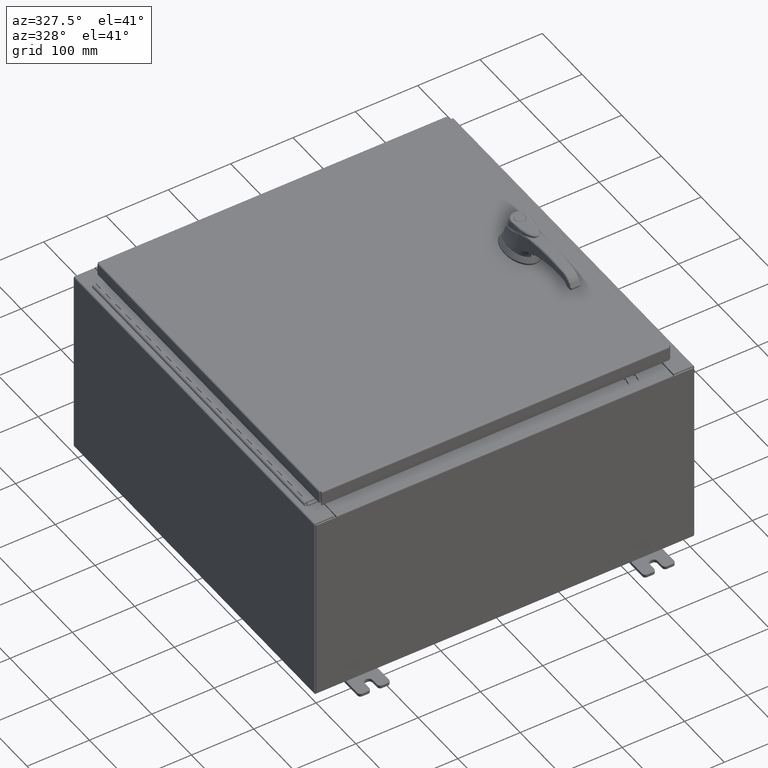
[diagram: clean part render]
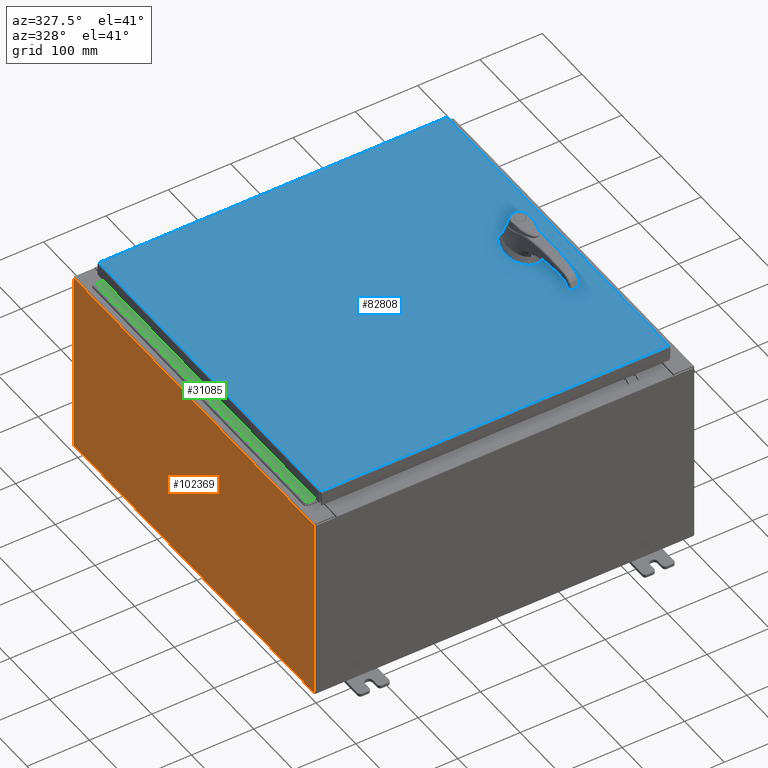
[diagram: same view with three faces highlighted in distinct colors, each labeled with its STEP entity id]
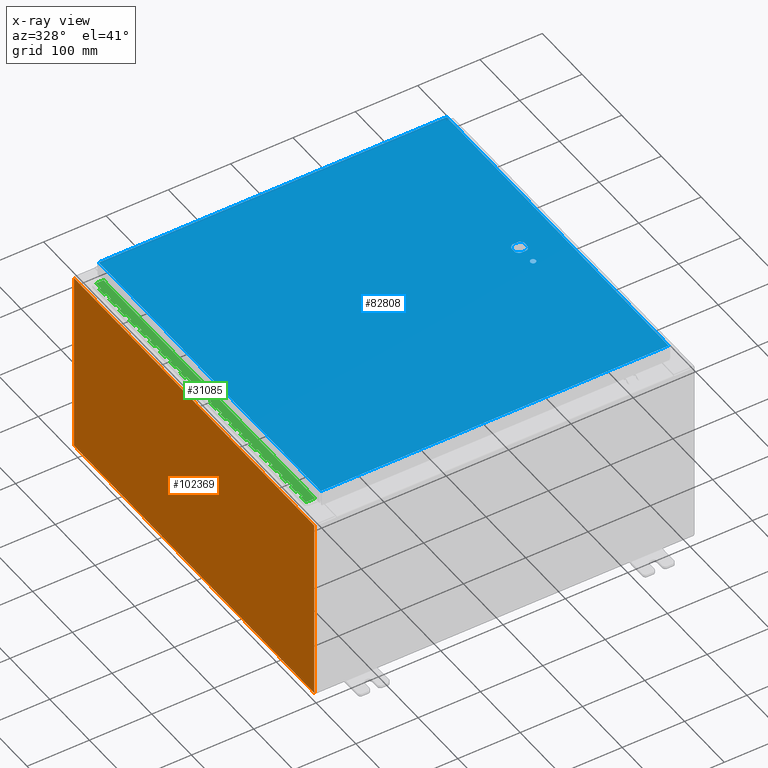
[diagram: x-ray of the same camera — body ghosted, the three highlighted faces saturated]
A machine part, auxiliary view with three faces highlighted in distinct colors.
The next image is the same camera in x-ray (body ghosted, the three faces saturated) — at least one of them is partly hidden behind the body in this view.
Their STEP definitions:

[orange] entity #102369 — the highlighted planar face has unit normal (1, 0, 0).
#864 = EDGE_CURVE ( 'NONE', #92095, #86201, #96930, .T. ) ;
#1594 = CARTESIAN_POINT ( 'NONE',  ( -12.00000000000000400, -11.92530000000000000, 0.01299999999999984700 ) ) ;
#3608 = ORIENTED_EDGE ( 'NONE', *, *, #864, .T. ) ;
#5493 = VECTOR ( 'NONE', #73808, 39.37007874015748100 ) ;
#15765 = VERTEX_POINT ( 'NONE', #1594 ) ;
#24123 = EDGE_LOOP ( 'NONE', ( #3608, #48232, #62073, #103620 ) ) ;
#28695 = LINE ( 'NONE', #108775, #5493 ) ;
#30105 = CARTESIAN_POINT ( 'NONE',  ( -12.00000000000004400, 11.92529999999999800, 11.83760000000000000 ) ) ;
#38321 = CARTESIAN_POINT ( 'NONE',  ( -12.00000000000000400, 0.0000000000000000000, -4.204500978058385200E-014 ) ) ;
#41998 = DIRECTION ( 'NONE',  ( -0.0000000000000000000, 1.000000000000000000, -0.0000000000000000000 ) ) ;
#42663 = LINE ( 'NONE', #94496, #101625 ) ;
#47095 = PLANE ( 'NONE',  #84865 ) ;
#48232 = ORIENTED_EDGE ( 'NONE', *, *, #106246, .T. ) ;
#50923 = EDGE_CURVE ( 'NONE', #15765, #92095, #28695, .T. ) ;
#52584 = CARTESIAN_POINT ( 'NONE',  ( -12.00000000000004400, -11.92530000000000000, 11.83760000000000000 ) ) ;
#55886 = DIRECTION ( 'NONE',  ( 3.482016343714355100E-015, 0.0000000000000000000, -1.000000000000000000 ) ) ;
#58075 = FACE_OUTER_BOUND ( 'NONE', #24123, .T. ) ;
#62073 = ORIENTED_EDGE ( 'NONE', *, *, #93634, .F. ) ;
#65605 = VERTEX_POINT ( 'NONE', #113135 ) ;
#73144 = DIRECTION ( 'NONE',  ( 1.000000000000000000, 0.0000000000000000000, 3.482016343714355100E-015 ) ) ;
#73590 = VECTOR ( 'NONE', #106495, 39.37007874015748100 ) ;
#73808 = DIRECTION ( 'NONE',  ( -3.482016343714355500E-015, 0.0000000000000000000, 1.000000000000000000 ) ) ;
#75538 = LINE ( 'NONE', #86756, #96106 ) ;
#84865 = AXIS2_PLACEMENT_3D ( 'NONE', #38321, #73144, #55886 ) ;
#86201 = VERTEX_POINT ( 'NONE', #30105 ) ;
#86756 = CARTESIAN_POINT ( 'NONE',  ( -12.00000000000000400, 11.92529999999999800, -4.204500978058385200E-014 ) ) ;
#92095 = VERTEX_POINT ( 'NONE', #52584 ) ;
#93634 = EDGE_CURVE ( 'NONE', #15765, #65605, #42663, .T. ) ;
#94496 = CARTESIAN_POINT ( 'NONE',  ( -12.00000000000000400, 11.92529999999999800, 0.01299999999999984700 ) ) ;
#95581 = DIRECTION ( 'NONE',  ( 3.482016343714355500E-015, 0.0000000000000000000, -1.000000000000000000 ) ) ;
#96106 = VECTOR ( 'NONE', #95581, 39.37007874015748100 ) ;
#96930 = LINE ( 'NONE', #97636, #73590 ) ;
#97636 = CARTESIAN_POINT ( 'NONE',  ( -12.00000000000004400, -11.92530000000000400, 11.83760000000000000 ) ) ;
#101625 = VECTOR ( 'NONE', #41998, 39.37007874015748100 ) ;
#102369 = ADVANCED_FACE ( 'NONE', ( #58075 ), #47095, .F. ) ;
#103620 = ORIENTED_EDGE ( 'NONE', *, *, #50923, .T. ) ;
#106246 = EDGE_CURVE ( 'NONE', #86201, #65605, #75538, .T. ) ;
#106495 = DIRECTION ( 'NONE',  ( 0.0000000000000000000, 1.000000000000000000, 0.0000000000000000000 ) ) ;
#108775 = CARTESIAN_POINT ( 'NONE',  ( -12.00000000000000400, -11.92530000000000400, -4.204500978058385200E-014 ) ) ;
#113135 = CARTESIAN_POINT ( 'NONE',  ( -12.00000000000000400, 11.92529999999999800, 0.01299999999999984700 ) ) ;

[blue] entity #82808 — the highlighted planar face has unit normal (0, 0, -1).
#319 = CIRCLE ( 'NONE', #63043, 0.4499999999999156900 ) ;
#1213 = FACE_BOUND ( 'NONE', #84560, .T. ) ;
#2016 = LINE ( 'NONE', #19506, #60898 ) ;
#2313 = CARTESIAN_POINT ( 'NONE',  ( 0.0000000000000000000, 0.0000000000000000000, 0.0000000000000000000 ) ) ;
#2352 = CARTESIAN_POINT ( 'NONE',  ( 8.406499999999994100, -1.338000000000000100, 0.0000000000000000000 ) ) ;
#3964 = FACE_OUTER_BOUND ( 'NONE', #13405, .T. ) ;
#4355 = CARTESIAN_POINT ( 'NONE',  ( -10.99030000000000500, 11.00629999999999600, -1.348849946871729900E-015 ) ) ;
#4402 = EDGE_LOOP ( 'NONE', ( #40991, #10121, #81820, #55348, #108268, #20674, #41178, #44084 ) ) ;
#5030 = CARTESIAN_POINT ( 'NONE',  ( 8.577999999999995900, -1.338000000000000100, 0.0000000000000000000 ) ) ;
#5895 = EDGE_CURVE ( 'NONE', #40067, #77052, #73189, .T. ) ;
#6149 = VECTOR ( 'NONE', #57859, 39.37007874015748100 ) ;
#6260 = CARTESIAN_POINT ( 'NONE',  ( 8.175000000000070000, 0.0000000000000000000, 0.0000000000000000000 ) ) ;
#6501 = CIRCLE ( 'NONE', #12283, 0.1715000000000011500 ) ;
#7462 = CARTESIAN_POINT ( 'NONE',  ( 10.99029999999999600, -11.00630000000000100, -2.048885995248197400E-016 ) ) ;
#8141 = ORIENTED_EDGE ( 'NONE', *, *, #69239, .T. ) ;
#9685 = CARTESIAN_POINT ( 'NONE',  ( 8.577999999999995900, 0.0000000000000000000, 0.0000000000000000000 ) ) ;
#10121 = ORIENTED_EDGE ( 'NONE', *, *, #25919, .F. ) ;
#12283 = AXIS2_PLACEMENT_3D ( 'NONE', #5030, #66262, #13829 ) ;
#12781 = EDGE_CURVE ( 'NONE', #31166, #49840, #80547, .T. ) ;
#13405 = EDGE_LOOP ( 'NONE', ( #37363, #8141, #19566, #53762 ) ) ;
#13829 = DIRECTION ( 'NONE',  ( 1.000000000000000000, 0.0000000000000000000, 0.0000000000000000000 ) ) ;
#14201 = VERTEX_POINT ( 'NONE', #65608 ) ;
#14681 = VECTOR ( 'NONE', #81352, 39.37007874015748100 ) ;
#15039 = ORIENTED_EDGE ( 'NONE', *, *, #48758, .F. ) ;
#15437 = CARTESIAN_POINT ( 'NONE',  ( 8.980999999999921700, 0.2002273707563080300, 0.0000000000000000000 ) ) ;
#18063 = AXIS2_PLACEMENT_3D ( 'NONE', #75418, #22946, #84235 ) ;
#18429 = DIRECTION ( 'NONE',  ( 1.000000000000000000, 0.0000000000000000000, 0.0000000000000000000 ) ) ;
#19506 = CARTESIAN_POINT ( 'NONE',  ( 0.0000000000000000000, -0.4029999999999252000, 0.0000000000000000000 ) ) ;
#19566 = ORIENTED_EDGE ( 'NONE', *, *, #107357, .T. ) ;
#20674 = ORIENTED_EDGE ( 'NONE', *, *, #72484, .F. ) ;
#21145 = CIRCLE ( 'NONE', #61325, 0.4499999999999156900 ) ;
#21609 = EDGE_CURVE ( 'NONE', #44673, #50303, #6501, .T. ) ;
#22158 = CARTESIAN_POINT ( 'NONE',  ( 8.577999999999995900, 0.0000000000000000000, 0.0000000000000000000 ) ) ;
#22846 = LINE ( 'NONE', #58805, #43404 ) ;
#22946 = DIRECTION ( 'NONE',  ( -0.0000000000000000000, 0.0000000000000000000, 1.000000000000000000 ) ) ;
#23541 = VERTEX_POINT ( 'NONE', #91167 ) ;
#25919 = EDGE_CURVE ( 'NONE', #96093, #77052, #319, .T. ) ;
#26302 = CARTESIAN_POINT ( 'NONE',  ( 8.577999999999995900, -1.338000000000000100, 0.0000000000000000000 ) ) ;
#28209 = CARTESIAN_POINT ( 'NONE',  ( 8.778227370756305000, 0.4029999999999252000, 0.0000000000000000000 ) ) ;
#28676 = PLANE ( 'NONE',  #100806 ) ;
#28876 = CARTESIAN_POINT ( 'NONE',  ( 10.99029999999999600, -11.00630000000000100, -2.048885995248197400E-016 ) ) ;
#28934 = CARTESIAN_POINT ( 'NONE',  ( 8.577999999999995900, 0.0000000000000000000, 0.0000000000000000000 ) ) ;
#30980 = DIRECTION ( 'NONE',  ( 1.000000000000000000, 0.0000000000000000000, 0.0000000000000000000 ) ) ;
#31166 = VERTEX_POINT ( 'NONE', #28209 ) ;
#32129 = CIRCLE ( 'NONE', #18063, 0.4499999999999156900 ) ;
#33026 = CARTESIAN_POINT ( 'NONE',  ( 0.0000000000000000000, 0.4029999999999252000, 0.0000000000000000000 ) ) ;
#35077 = DIRECTION ( 'NONE',  ( 1.000000000000000000, 0.0000000000000000000, 0.0000000000000000000 ) ) ;
#35402 = EDGE_CURVE ( 'NONE', #14201, #63783, #104766, .T. ) ;
#36415 = CARTESIAN_POINT ( 'NONE',  ( 8.175000000000070000, -0.2002273707563079800, 0.0000000000000000000 ) ) ;
#36842 = VECTOR ( 'NONE', #65593, 39.37007874015748100 ) ;
#37363 = ORIENTED_EDGE ( 'NONE', *, *, #40767, .T. ) ;
#37483 = DIRECTION ( 'NONE',  ( -1.000000000000000000, 0.0000000000000000000, -0.0000000000000000000 ) ) ;
#37756 = DIRECTION ( 'NONE',  ( 1.000000000000000000, 0.0000000000000000000, 0.0000000000000000000 ) ) ;
#39625 = LINE ( 'NONE', #4355, #36842 ) ;
#39981 = ORIENTED_EDGE ( 'NONE', *, *, #21609, .F. ) ;
#40067 = VERTEX_POINT ( 'NONE', #15437 ) ;
#40767 = EDGE_CURVE ( 'NONE', #60594, #94534, #22846, .T. ) ;
#40991 = ORIENTED_EDGE ( 'NONE', *, *, #5895, .T. ) ;
#41178 = ORIENTED_EDGE ( 'NONE', *, *, #12781, .F. ) ;
#41183 = LINE ( 'NONE', #63958, #85024 ) ;
#43404 = VECTOR ( 'NONE', #111375, 39.37007874015748100 ) ;
#44084 = ORIENTED_EDGE ( 'NONE', *, *, #102543, .F. ) ;
#44385 = CIRCLE ( 'NONE', #73047, 0.4499999999999156900 ) ;
#44673 = VERTEX_POINT ( 'NONE', #2352 ) ;
#48758 = EDGE_CURVE ( 'NONE', #50303, #44673, #82220, .T. ) ;
#48955 = CARTESIAN_POINT ( 'NONE',  ( 8.377772629243686700, 0.4029999999999252000, 0.0000000000000000000 ) ) ;
#49840 = VERTEX_POINT ( 'NONE', #48955 ) ;
#50303 = VERTEX_POINT ( 'NONE', #106993 ) ;
#53762 = ORIENTED_EDGE ( 'NONE', *, *, #108880, .T. ) ;
#55325 = VECTOR ( 'NONE', #76265, 39.37007874015748100 ) ;
#55348 = ORIENTED_EDGE ( 'NONE', *, *, #87451, .F. ) ;
#57022 = CARTESIAN_POINT ( 'NONE',  ( 10.99029999999999800, 11.00629999999999600, -2.048885995248197400E-016 ) ) ;
#57859 = DIRECTION ( 'NONE',  ( 2.728745808672812900E-015, -1.000000000000000000, 0.0000000000000000000 ) ) ;
#58805 = CARTESIAN_POINT ( 'NONE',  ( -10.99030000000000000, -11.00630000000000100, -2.048885995248197400E-016 ) ) ;
#60594 = VERTEX_POINT ( 'NONE', #65153 ) ;
#60898 = VECTOR ( 'NONE', #89594, 39.37007874015748100 ) ;
#61325 = AXIS2_PLACEMENT_3D ( 'NONE', #22158, #83465, #30980 ) ;
#63043 = AXIS2_PLACEMENT_3D ( 'NONE', #9685, #70911, #18429 ) ;
#63783 = VERTEX_POINT ( 'NONE', #36415 ) ;
#63958 = CARTESIAN_POINT ( 'NONE',  ( 10.99029999999999800, 11.00629999999999600, -2.048885995248197400E-016 ) ) ;
#65153 = CARTESIAN_POINT ( 'NONE',  ( -10.99030000000000000, -11.00630000000000100, -2.048885995248197400E-016 ) ) ;
#65593 = DIRECTION ( 'NONE',  ( 0.0000000000000000000, -1.000000000000000000, 0.0000000000000000000 ) ) ;
#65608 = CARTESIAN_POINT ( 'NONE',  ( 8.175000000000070000, 0.2002273707563079800, 0.0000000000000000000 ) ) ;
#66262 = DIRECTION ( 'NONE',  ( -0.0000000000000000000, 0.0000000000000000000, 1.000000000000000000 ) ) ;
#69239 = EDGE_CURVE ( 'NONE', #94534, #89417, #105135, .T. ) ;
#70911 = DIRECTION ( 'NONE',  ( -0.0000000000000000000, 0.0000000000000000000, 1.000000000000000000 ) ) ;
#71087 = FACE_BOUND ( 'NONE', #4402, .T. ) ;
#72111 = EDGE_CURVE ( 'NONE', #80333, #96093, #2016, .T. ) ;
#72484 = EDGE_CURVE ( 'NONE', #49840, #14201, #44385, .T. ) ;
#72960 = AXIS2_PLACEMENT_3D ( 'NONE', #26302, #87587, #35077 ) ;
#73047 = AXIS2_PLACEMENT_3D ( 'NONE', #28934, #90225, #37756 ) ;
#73189 = LINE ( 'NONE', #98143, #6149 ) ;
#75418 = CARTESIAN_POINT ( 'NONE',  ( 8.577999999999995900, 0.0000000000000000000, 0.0000000000000000000 ) ) ;
#76265 = DIRECTION ( 'NONE',  ( 0.0000000000000000000, -1.000000000000000000, 0.0000000000000000000 ) ) ;
#77052 = VERTEX_POINT ( 'NONE', #102837 ) ;
#80333 = VERTEX_POINT ( 'NONE', #89162 ) ;
#80547 = LINE ( 'NONE', #33026, #103949 ) ;
#81352 = DIRECTION ( 'NONE',  ( 0.0000000000000000000, 1.000000000000000000, 0.0000000000000000000 ) ) ;
#81820 = ORIENTED_EDGE ( 'NONE', *, *, #72111, .F. ) ;
#82220 = CIRCLE ( 'NONE', #72960, 0.1715000000000011500 ) ;
#82808 = ADVANCED_FACE ( 'NONE', ( #1213, #3964, #71087 ), #28676, .F. ) ;
#83465 = DIRECTION ( 'NONE',  ( -0.0000000000000000000, 0.0000000000000000000, 1.000000000000000000 ) ) ;
#84235 = DIRECTION ( 'NONE',  ( 1.000000000000000000, 0.0000000000000000000, 0.0000000000000000000 ) ) ;
#84560 = EDGE_LOOP ( 'NONE', ( #15039, #39981 ) ) ;
#85024 = VECTOR ( 'NONE', #108083, 39.37007874015748100 ) ;
#87451 = EDGE_CURVE ( 'NONE', #63783, #80333, #21145, .T. ) ;
#87587 = DIRECTION ( 'NONE',  ( -0.0000000000000000000, 0.0000000000000000000, 1.000000000000000000 ) ) ;
#89162 = CARTESIAN_POINT ( 'NONE',  ( 8.377772629243686700, -0.4029999999999252000, 0.0000000000000000000 ) ) ;
#89417 = VERTEX_POINT ( 'NONE', #57022 ) ;
#89594 = DIRECTION ( 'NONE',  ( 1.000000000000000000, 0.0000000000000000000, 0.0000000000000000000 ) ) ;
#89968 = DIRECTION ( 'NONE',  ( 0.0000000000000000000, 0.0000000000000000000, -1.000000000000000000 ) ) ;
#90225 = DIRECTION ( 'NONE',  ( -0.0000000000000000000, 0.0000000000000000000, 1.000000000000000000 ) ) ;
#91167 = CARTESIAN_POINT ( 'NONE',  ( -10.99030000000000500, 11.00629999999999600, -1.348849946871729900E-015 ) ) ;
#94534 = VERTEX_POINT ( 'NONE', #7462 ) ;
#96093 = VERTEX_POINT ( 'NONE', #108199 ) ;
#98143 = CARTESIAN_POINT ( 'NONE',  ( 8.980999999999921700, 2.450686610769031800E-014, 0.0000000000000000000 ) ) ;
#100806 = AXIS2_PLACEMENT_3D ( 'NONE', #2313, #89968, #37483 ) ;
#102543 = EDGE_CURVE ( 'NONE', #40067, #31166, #32129, .T. ) ;
#102808 = DIRECTION ( 'NONE',  ( -1.000000000000000000, 0.0000000000000000000, 0.0000000000000000000 ) ) ;
#102837 = CARTESIAN_POINT ( 'NONE',  ( 8.980999999999921700, -0.2002273707563079800, 0.0000000000000000000 ) ) ;
#103949 = VECTOR ( 'NONE', #102808, 39.37007874015748100 ) ;
#104766 = LINE ( 'NONE', #6260, #55325 ) ;
#105135 = LINE ( 'NONE', #28876, #14681 ) ;
#106993 = CARTESIAN_POINT ( 'NONE',  ( 8.749499999999997600, -1.338000000000000100, 0.0000000000000000000 ) ) ;
#107357 = EDGE_CURVE ( 'NONE', #89417, #23541, #41183, .T. ) ;
#108083 = DIRECTION ( 'NONE',  ( -1.000000000000000000, -0.0000000000000000000, -0.0000000000000000000 ) ) ;
#108199 = CARTESIAN_POINT ( 'NONE',  ( 8.778227370756305000, -0.4029999999999252000, 0.0000000000000000000 ) ) ;
#108268 = ORIENTED_EDGE ( 'NONE', *, *, #35402, .F. ) ;
#108880 = EDGE_CURVE ( 'NONE', #23541, #60594, #39625, .T. ) ;
#111375 = DIRECTION ( 'NONE',  ( 1.000000000000000000, -0.0000000000000000000, -0.0000000000000000000 ) ) ;

[green] entity #31085 — the highlighted planar face has unit normal (-0, -0, 1).
#3 = DIRECTION ( 'NONE',  ( -3.389037039080723100E-015, -1.000000000000000000, 0.0000000000000000000 ) ) ;
#174 = LINE ( 'NONE', #51407, #17930 ) ;
#380 = VECTOR ( 'NONE', #12218, 39.37007874015748100 ) ;
#439 = VERTEX_POINT ( 'NONE', #30290 ) ;
#506 = VERTEX_POINT ( 'NONE', #83547 ) ;
#938 = CARTESIAN_POINT ( 'NONE',  ( -0.6869999999999978300, 0.6754999999999996600, -7.499999999999999100 ) ) ;
#1027 = CARTESIAN_POINT ( 'NONE',  ( -0.6869999999999982800, 0.5504999999999997700, -21.00000000000000000 ) ) ;
#1098 = ORIENTED_EDGE ( 'NONE', *, *, #96114, .F. ) ;
#1465 = CARTESIAN_POINT ( 'NONE',  ( -0.6870000000000022800, -0.6245000000000003900, -21.00000000000000000 ) ) ;
#1484 = LINE ( 'NONE', #98883, #91905 ) ;
#1541 = EDGE_CURVE ( 'NONE', #55861, #102609, #89986, .T. ) ;
#1973 = LINE ( 'NONE', #69575, #43042 ) ;
#1977 = ORIENTED_EDGE ( 'NONE', *, *, #28407, .F. ) ;
#2005 = VERTEX_POINT ( 'NONE', #29922 ) ;
#2578 = LINE ( 'NONE', #7699, #23084 ) ;
#2588 = VECTOR ( 'NONE', #74882, 39.37007874015748100 ) ;
#3095 = VERTEX_POINT ( 'NONE', #70613 ) ;
#3418 = VECTOR ( 'NONE', #32324, 39.37007874015748100 ) ;
#3625 = ORIENTED_EDGE ( 'NONE', *, *, #31841, .F. ) ;
#3764 = LINE ( 'NONE', #40401, #94198 ) ;
#3997 = DIRECTION ( 'NONE',  ( -3.389037039080723100E-015, -1.000000000000000000, 0.0000000000000000000 ) ) ;
#4537 = CARTESIAN_POINT ( 'NONE',  ( -0.6869999999999982800, 0.5504999999999997700, -9.500000000000000000 ) ) ;
#4630 = VECTOR ( 'NONE', #57513, 39.37007874015748100 ) ;
#4665 = CARTESIAN_POINT ( 'NONE',  ( -0.6869999999999982800, 0.5504999999999997700, -14.00000000000000000 ) ) ;
#5015 = CARTESIAN_POINT ( 'NONE',  ( -0.6869999999999978300, 0.6754999999999996600, -21.00000000000000000 ) ) ;
#5119 = ORIENTED_EDGE ( 'NONE', *, *, #62767, .F. ) ;
#5416 = CARTESIAN_POINT ( 'NONE',  ( -0.6869999999999982800, 0.5504999999999997700, -13.50000000000000000 ) ) ;
#5528 = VECTOR ( 'NONE', #13353, 39.37007874015748100 ) ;
#5829 = VERTEX_POINT ( 'NONE', #19591 ) ;
#5920 = VECTOR ( 'NONE', #59561, 39.37007874015748100 ) ;
#6168 = CARTESIAN_POINT ( 'NONE',  ( -0.6869999999999982800, 0.5504999999999997700, -7.499999999999999100 ) ) ;
#6445 = LINE ( 'NONE', #51759, #73481 ) ;
#6745 = CARTESIAN_POINT ( 'NONE',  ( -0.6869999999999998300, 0.07549999999999991400, -21.00000000000000000 ) ) ;
#6748 = CARTESIAN_POINT ( 'NONE',  ( -0.6869999999999982800, 0.5504999999999997700, -17.00000000000000000 ) ) ;
#6775 = LINE ( 'NONE', #19870, #27228 ) ;
#6786 = LINE ( 'NONE', #51449, #27243 ) ;
#7115 = EDGE_CURVE ( 'NONE', #15383, #82141, #15540, .T. ) ;
#7199 = DIRECTION ( 'NONE',  ( 0.0000000000000000000, 0.0000000000000000000, 1.000000000000000000 ) ) ;
#7695 = DIRECTION ( 'NONE',  ( 3.389037039080723100E-015, 1.000000000000000000, -0.0000000000000000000 ) ) ;
#7699 = CARTESIAN_POINT ( 'NONE',  ( -0.6869999999999982800, 0.5504999999999997700, -19.50000000000000000 ) ) ;
#7842 = DIRECTION ( 'NONE',  ( 3.389037039080723100E-015, 1.000000000000000000, -0.0000000000000000000 ) ) ;
#7885 = EDGE_CURVE ( 'NONE', #28649, #35187, #111471, .T. ) ;
#7970 = LINE ( 'NONE', #53515, #51727 ) ;
#7991 = ORIENTED_EDGE ( 'NONE', *, *, #93968, .F. ) ;
#8072 = DIRECTION ( 'NONE',  ( 3.389037039080723100E-015, 1.000000000000000000, -0.0000000000000000000 ) ) ;
#8393 = DIRECTION ( 'NONE',  ( -3.389037039080723100E-015, -1.000000000000000000, 0.0000000000000000000 ) ) ;
#8437 = DIRECTION ( 'NONE',  ( 0.0000000000000000000, -0.0000000000000000000, -1.000000000000000000 ) ) ;
#8999 = VECTOR ( 'NONE', #37874, 39.37007874015748100 ) ;
#9001 = CARTESIAN_POINT ( 'NONE',  ( -0.6869999999999978300, 0.6754999999999996600, -12.99999999999999800 ) ) ;
#9319 = VERTEX_POINT ( 'NONE', #81337 ) ;
#9547 = ORIENTED_EDGE ( 'NONE', *, *, #26397, .F. ) ;
#9623 = CARTESIAN_POINT ( 'NONE',  ( -0.6869999999999978300, 0.6754999999999996600, -21.00000000000000000 ) ) ;
#9694 = EDGE_CURVE ( 'NONE', #65604, #89859, #174, .T. ) ;
#9759 = VERTEX_POINT ( 'NONE', #95470 ) ;
#9851 = LINE ( 'NONE', #87377, #100254 ) ;
#10016 = EDGE_CURVE ( 'NONE', #110019, #24501, #48044, .T. ) ;
#10373 = LINE ( 'NONE', #102367, #100816 ) ;
#11056 = ORIENTED_EDGE ( 'NONE', *, *, #38499, .T. ) ;
#11241 = LINE ( 'NONE', #22928, #101726 ) ;
#11486 = ORIENTED_EDGE ( 'NONE', *, *, #27440, .T. ) ;
#11698 = VECTOR ( 'NONE', #105295, 39.37007874015748100 ) ;
#11711 = CARTESIAN_POINT ( 'NONE',  ( -0.6869999999999978300, 0.6754999999999996600, -21.00000000000000000 ) ) ;
#11919 = CARTESIAN_POINT ( 'NONE',  ( -0.6869999999999978300, 0.6754999999999996600, -4.500000000000000000 ) ) ;
#12014 = DIRECTION ( 'NONE',  ( 0.0000000000000000000, -0.0000000000000000000, -1.000000000000000000 ) ) ;
#12048 = EDGE_CURVE ( 'NONE', #73177, #9319, #62859, .T. ) ;
#12137 = CARTESIAN_POINT ( 'NONE',  ( -0.6869999999999982800, 0.5504999999999997700, -17.50000000000000000 ) ) ;
#12218 = DIRECTION ( 'NONE',  ( -3.389037039080723100E-015, -1.000000000000000000, 0.0000000000000000000 ) ) ;
#12448 = CARTESIAN_POINT ( 'NONE',  ( -0.6869999999999973900, 0.8004999999999995500, -3.500000000000000000 ) ) ;
#12466 = VERTEX_POINT ( 'NONE', #53403 ) ;
#12658 = ORIENTED_EDGE ( 'NONE', *, *, #10016, .T. ) ;
#12828 = DIRECTION ( 'NONE',  ( 3.389037039080723100E-015, 1.000000000000000000, -0.0000000000000000000 ) ) ;
#13343 = ORIENTED_EDGE ( 'NONE', *, *, #24374, .F. ) ;
#13353 = DIRECTION ( 'NONE',  ( 0.0000000000000000000, -0.0000000000000000000, -1.000000000000000000 ) ) ;
#13438 = DIRECTION ( 'NONE',  ( 0.0000000000000000000, 0.0000000000000000000, 1.000000000000000000 ) ) ;
#13525 = LINE ( 'NONE', #59264, #77863 ) ;
#13923 = EDGE_CURVE ( 'NONE', #2005, #66606, #23617, .T. ) ;
#15031 = LINE ( 'NONE', #24780, #58853 ) ;
#15081 = CARTESIAN_POINT ( 'NONE',  ( -0.6869999999999978300, 0.6754999999999996600, -21.00000000000000000 ) ) ;
#15383 = VERTEX_POINT ( 'NONE', #23829 ) ;
#15540 = LINE ( 'NONE', #12137, #106024 ) ;
#15717 = LINE ( 'NONE', #5015, #62268 ) ;
#15860 = CARTESIAN_POINT ( 'NONE',  ( -0.6869999999999982800, 0.5504999999999997700, -3.500000000000000000 ) ) ;
#15901 = ORIENTED_EDGE ( 'NONE', *, *, #83814, .F. ) ;
#15931 = DIRECTION ( 'NONE',  ( -3.389037039080723100E-015, -1.000000000000000000, 0.0000000000000000000 ) ) ;
#15990 = LINE ( 'NONE', #59319, #106461 ) ;
#16061 = VECTOR ( 'NONE', #82714, 39.37007874015748100 ) ;
#16126 = ORIENTED_EDGE ( 'NONE', *, *, #28166, .F. ) ;
#16318 = CARTESIAN_POINT ( 'NONE',  ( -0.6869999999999982800, 0.5504999999999997700, -6.000000000000000900 ) ) ;
#16433 = ORIENTED_EDGE ( 'NONE', *, *, #63218, .T. ) ;
#16897 = VECTOR ( 'NONE', #8072, 39.37007874015748100 ) ;
#16914 = CARTESIAN_POINT ( 'NONE',  ( -0.6869999999999978300, 0.6754999999999996600, -21.00000000000000000 ) ) ;
#16934 = CARTESIAN_POINT ( 'NONE',  ( -0.6869999999999978300, 0.6754999999999996600, -21.00000000000000000 ) ) ;
#17284 = CARTESIAN_POINT ( 'NONE',  ( -0.6869999999999978300, 0.6754999999999996600, -11.00000000000000000 ) ) ;
#17548 = LINE ( 'NONE', #60788, #64145 ) ;
#17718 = CARTESIAN_POINT ( 'NONE',  ( -0.6869999999999978300, 0.6754999999999996600, -21.00000000000000000 ) ) ;
#17930 = VECTOR ( 'NONE', #7842, 39.37007874015748100 ) ;
#17940 = LINE ( 'NONE', #79835, #61773 ) ;
#18251 = VERTEX_POINT ( 'NONE', #4665 ) ;
#18316 = DIRECTION ( 'NONE',  ( 0.0000000000000000000, -0.0000000000000000000, -1.000000000000000000 ) ) ;
#18473 = CARTESIAN_POINT ( 'NONE',  ( -0.6869999999999982800, 0.5504999999999997700, -4.500000000000000000 ) ) ;
#18992 = ORIENTED_EDGE ( 'NONE', *, *, #22900, .T. ) ;
#19031 = DIRECTION ( 'NONE',  ( 3.369016658928398200E-015, 1.000000000000000000, 0.0000000000000000000 ) ) ;
#19039 = LINE ( 'NONE', #99710, #45069 ) ;
#19042 = CARTESIAN_POINT ( 'NONE',  ( -0.6869999999999982800, 0.5504999999999997700, -18.50000000000000000 ) ) ;
#19388 = LINE ( 'NONE', #77692, #66021 ) ;
#19591 = CARTESIAN_POINT ( 'NONE',  ( -0.6869999999999982800, 0.5504999999999997700, -12.99999999999999800 ) ) ;
#19595 = EDGE_CURVE ( 'NONE', #35187, #89428, #2578, .T. ) ;
#19870 = CARTESIAN_POINT ( 'NONE',  ( -0.6869999999999973900, 0.8004999999999995500, -7.000000000000000000 ) ) ;
#19996 = CARTESIAN_POINT ( 'NONE',  ( -0.6869999999999982800, 0.5504999999999997700, -17.99999999999999600 ) ) ;
#20041 = DIRECTION ( 'NONE',  ( 0.0000000000000000000, 0.0000000000000000000, 1.000000000000000000 ) ) ;
#20296 = ORIENTED_EDGE ( 'NONE', *, *, #56068, .T. ) ;
#20354 = DIRECTION ( 'NONE',  ( 0.0000000000000000000, 0.0000000000000000000, 1.000000000000000000 ) ) ;
#20430 = EDGE_CURVE ( 'NONE', #109810, #83483, #49049, .T. ) ;
#20986 = CARTESIAN_POINT ( 'NONE',  ( -0.6869999999999973900, 0.8004999999999995500, -12.49999999999999800 ) ) ;
#21412 = CARTESIAN_POINT ( 'NONE',  ( -0.6869999999999973900, 0.8004999999999995500, -15.50000000000000000 ) ) ;
#21597 = VECTOR ( 'NONE', #101769, 39.37007874015748100 ) ;
#21836 = EDGE_CURVE ( 'NONE', #111874, #65604, #15990, .T. ) ;
#22055 = CARTESIAN_POINT ( 'NONE',  ( -0.6869999999999973900, 0.8004999999999995500, -14.00000000000000000 ) ) ;
#22105 = EDGE_CURVE ( 'NONE', #87221, #109810, #95438, .T. ) ;
#22203 = VERTEX_POINT ( 'NONE', #46204 ) ;
#22666 = DIRECTION ( 'NONE',  ( 0.0000000000000000000, -0.0000000000000000000, -1.000000000000000000 ) ) ;
#22847 = EDGE_CURVE ( 'NONE', #104870, #35296, #80221, .T. ) ;
#22900 = EDGE_CURVE ( 'NONE', #32528, #71158, #98051, .T. ) ;
#22928 = CARTESIAN_POINT ( 'NONE',  ( -0.6869999999999982800, 0.5504999999999997700, -6.499999999999999100 ) ) ;
#23012 = CARTESIAN_POINT ( 'NONE',  ( -0.6869999999999982800, 0.5504999999999997700, -0.5000000000000000000 ) ) ;
#23084 = VECTOR ( 'NONE', #8437, 39.37007874015748100 ) ;
#23617 = LINE ( 'NONE', #62173, #108652 ) ;
#23829 = CARTESIAN_POINT ( 'NONE',  ( -0.6869999999999982800, 0.5504999999999997700, -17.50000000000000000 ) ) ;
#23874 = LINE ( 'NONE', #34770, #44395 ) ;
#23907 = EDGE_CURVE ( 'NONE', #40516, #69696, #25300, .T. ) ;
#24013 = LINE ( 'NONE', #87573, #91146 ) ;
#24148 = LINE ( 'NONE', #44895, #44676 ) ;
#24259 = ORIENTED_EDGE ( 'NONE', *, *, #91184, .F. ) ;
#24374 = EDGE_CURVE ( 'NONE', #52862, #81079, #23874, .T. ) ;
#24501 = VERTEX_POINT ( 'NONE', #29373 ) ;
#24780 = CARTESIAN_POINT ( 'NONE',  ( -0.6869999999999973900, 0.8004999999999995500, -20.00000000000000000 ) ) ;
#25061 = EDGE_CURVE ( 'NONE', #40566, #54868, #101970, .T. ) ;
#25300 = LINE ( 'NONE', #87646, #69166 ) ;
#25897 = DIRECTION ( 'NONE',  ( 3.369016658928398200E-015, 1.000000000000000000, 0.0000000000000000000 ) ) ;
#26215 = ORIENTED_EDGE ( 'NONE', *, *, #74559, .F. ) ;
#26298 = CARTESIAN_POINT ( 'NONE',  ( -0.6869999999999978300, 0.6754999999999996600, -19.00000000000000000 ) ) ;
#26326 = ORIENTED_EDGE ( 'NONE', *, *, #82799, .F. ) ;
#26356 = DIRECTION ( 'NONE',  ( 3.389037039080723100E-015, 1.000000000000000000, -0.0000000000000000000 ) ) ;
#26397 = EDGE_CURVE ( 'NONE', #82141, #61782, #19388, .T. ) ;
#26454 = VECTOR ( 'NONE', #29589, 39.37007874015748100 ) ;
#26867 = CARTESIAN_POINT ( 'NONE',  ( -0.6869999999999982800, 0.5504999999999997700, -2.500000000000000000 ) ) ;
#26932 = EDGE_CURVE ( 'NONE', #78621, #80645, #108498, .T. ) ;
#27088 = ORIENTED_EDGE ( 'NONE', *, *, #83383, .F. ) ;
#27196 = EDGE_CURVE ( 'NONE', #68717, #74911, #94715, .T. ) ;
#27228 = VECTOR ( 'NONE', #81140, 39.37007874015748100 ) ;
#27243 = VECTOR ( 'NONE', #42637, 39.37007874015748100 ) ;
#27384 = VECTOR ( 'NONE', #97527, 39.37007874015748100 ) ;
#27394 = DIRECTION ( 'NONE',  ( 3.389037039080723100E-015, 1.000000000000000000, -0.0000000000000000000 ) ) ;
#27440 = EDGE_CURVE ( 'NONE', #39865, #95530, #104313, .T. ) ;
#27728 = CARTESIAN_POINT ( 'NONE',  ( -0.6869999999999973900, 0.8004999999999995500, -19.00000000000000000 ) ) ;
#27815 = CARTESIAN_POINT ( 'NONE',  ( -0.6869999999999978300, 0.6754999999999996600, -8.500000000000000000 ) ) ;
#28166 = EDGE_CURVE ( 'NONE', #54312, #40566, #83590, .T. ) ;
#28383 = CARTESIAN_POINT ( 'NONE',  ( -0.6869999999999978300, 0.6754999999999996600, -2.999999999999999600 ) ) ;
#28407 = EDGE_CURVE ( 'NONE', #31378, #95105, #49331, .T. ) ;
#28550 = ORIENTED_EDGE ( 'NONE', *, *, #33123, .T. ) ;
#28649 = VERTEX_POINT ( 'NONE', #50437 ) ;
#28670 = EDGE_CURVE ( 'NONE', #55747, #52871, #84934, .T. ) ;
#29373 = CARTESIAN_POINT ( 'NONE',  ( -0.6869999999999978300, 0.6754999999999996600, -9.000000000000000000 ) ) ;
#29408 = EDGE_CURVE ( 'NONE', #18251, #40504, #51945, .T. ) ;
#29560 = ORIENTED_EDGE ( 'NONE', *, *, #89580, .F. ) ;
#29589 = DIRECTION ( 'NONE',  ( 0.0000000000000000000, 0.0000000000000000000, 1.000000000000000000 ) ) ;
#29675 = DIRECTION ( 'NONE',  ( 0.0000000000000000000, -0.0000000000000000000, -1.000000000000000000 ) ) ;
#29722 = VECTOR ( 'NONE', #77049, 39.37007874015748100 ) ;
#29810 = DIRECTION ( 'NONE',  ( 3.389037039080723100E-015, 1.000000000000000000, -0.0000000000000000000 ) ) ;
#29922 = CARTESIAN_POINT ( 'NONE',  ( -0.6869999999999978300, 0.6754999999999996600, -0.5000000000000000000 ) ) ;
#30257 = EDGE_CURVE ( 'NONE', #76702, #52862, #75117, .T. ) ;
#30290 = CARTESIAN_POINT ( 'NONE',  ( -0.6869999999999982800, 0.5504999999999997700, -2.000000000000000000 ) ) ;
#30720 = CARTESIAN_POINT ( 'NONE',  ( -0.6869999999999982800, 0.5504999999999997700, -15.50000000000000000 ) ) ;
#31085 = ADVANCED_FACE ( 'NONE', ( #112192 ), #62676, .T. ) ;
#31378 = VERTEX_POINT ( 'NONE', #92539 ) ;
#31623 = CARTESIAN_POINT ( 'NONE',  ( -0.6869999999999982800, 0.5504999999999997700, -5.500000000000000000 ) ) ;
#31682 = ORIENTED_EDGE ( 'NONE', *, *, #30257, .F. ) ;
#31779 = ORIENTED_EDGE ( 'NONE', *, *, #64440, .F. ) ;
#31841 = EDGE_CURVE ( 'NONE', #46244, #110679, #76371, .T. ) ;
#31874 = CARTESIAN_POINT ( 'NONE',  ( -0.6869999999999982800, 0.5504999999999997700, -4.000000000000000000 ) ) ;
#32243 = LINE ( 'NONE', #20986, #8999 ) ;
#32324 = DIRECTION ( 'NONE',  ( 0.0000000000000000000, 0.0000000000000000000, 1.000000000000000000 ) ) ;
#32413 = DIRECTION ( 'NONE',  ( -3.389037039080723100E-015, -1.000000000000000000, 0.0000000000000000000 ) ) ;
#32464 = CARTESIAN_POINT ( 'NONE',  ( -0.6869999999999982800, 0.5504999999999997700, -13.50000000000000000 ) ) ;
#32528 = VERTEX_POINT ( 'NONE', #84541 ) ;
#32957 = EDGE_CURVE ( 'NONE', #86871, #102210, #24148, .T. ) ;
#33123 = EDGE_CURVE ( 'NONE', #67965, #40504, #36421, .T. ) ;
#33677 = EDGE_CURVE ( 'NONE', #76764, #90313, #73370, .T. ) ;
#33684 = VECTOR ( 'NONE', #20354, 39.37007874015748100 ) ;
#33803 = VECTOR ( 'NONE', #37723, 39.37007874015748100 ) ;
#34124 = LINE ( 'NONE', #18473, #106866 ) ;
#34180 = ORIENTED_EDGE ( 'NONE', *, *, #12048, .F. ) ;
#34204 = LINE ( 'NONE', #56373, #83580 ) ;
#34593 = EDGE_CURVE ( 'NONE', #104870, #60229, #52700, .T. ) ;
#34598 = CARTESIAN_POINT ( 'NONE',  ( -0.6869999999999978300, 0.6754999999999996600, -5.000000000000000000 ) ) ;
#34770 = CARTESIAN_POINT ( 'NONE',  ( -0.6869999999999982800, 0.5504999999999997700, -10.50000000000000000 ) ) ;
#34890 = EDGE_CURVE ( 'NONE', #2005, #47403, #106190, .T. ) ;
#35183 = EDGE_CURVE ( 'NONE', #60229, #47403, #1973, .T. ) ;
#35187 = VERTEX_POINT ( 'NONE', #78340 ) ;
#35296 = VERTEX_POINT ( 'NONE', #1027 ) ;
#35900 = CARTESIAN_POINT ( 'NONE',  ( -0.6869999999999982800, 0.5504999999999997700, -12.49999999999999800 ) ) ;
#36082 = ORIENTED_EDGE ( 'NONE', *, *, #37034, .F. ) ;
#36094 = EDGE_CURVE ( 'NONE', #52871, #71158, #63470, .T. ) ;
#36193 = ORIENTED_EDGE ( 'NONE', *, *, #64648, .F. ) ;
#36210 = VECTOR ( 'NONE', #72694, 39.37007874015748100 ) ;
#36229 = AXIS2_PLACEMENT_3D ( 'NONE', #1465, #71506, #19031 ) ;
#36369 = DIRECTION ( 'NONE',  ( 3.389037039080723100E-015, 1.000000000000000000, -0.0000000000000000000 ) ) ;
#36421 = LINE ( 'NONE', #90446, #33684 ) ;
#36969 = VECTOR ( 'NONE', #3, 39.37007874015748100 ) ;
#37034 = EDGE_CURVE ( 'NONE', #9759, #74095, #70445, .T. ) ;
#37314 = VERTEX_POINT ( 'NONE', #51165 ) ;
#37723 = DIRECTION ( 'NONE',  ( 0.0000000000000000000, -0.0000000000000000000, -1.000000000000000000 ) ) ;
#37874 = DIRECTION ( 'NONE',  ( -3.389037039080723100E-015, -1.000000000000000000, 0.0000000000000000000 ) ) ;
#37990 = CARTESIAN_POINT ( 'NONE',  ( -0.6869999999999982800, 0.5504999999999997700, -20.50000000000000400 ) ) ;
#38026 = CARTESIAN_POINT ( 'NONE',  ( -0.6869999999999978300, 0.6754999999999996600, -13.50000000000000000 ) ) ;
#38051 = CARTESIAN_POINT ( 'NONE',  ( -0.6869999999999978300, 0.6754999999999996600, -20.50000000000000400 ) ) ;
#38324 = VECTOR ( 'NONE', #41983, 39.37007874015748100 ) ;
#38438 = CARTESIAN_POINT ( 'NONE',  ( -0.6869999999999978300, 0.6754999999999996600, -21.00000000000000000 ) ) ;
#38464 = CARTESIAN_POINT ( 'NONE',  ( -0.6870000000000022800, -0.6245000000000003900, -21.00000000000000000 ) ) ;
#38499 = EDGE_CURVE ( 'NONE', #99552, #3095, #71116, .T. ) ;
#38553 = ORIENTED_EDGE ( 'NONE', *, *, #107206, .F. ) ;
#38555 = ORIENTED_EDGE ( 'NONE', *, *, #111994, .T. ) ;
#38613 = CARTESIAN_POINT ( 'NONE',  ( -0.6869999999999982800, 0.5504999999999997700, -14.49999999999999800 ) ) ;
#38757 = VERTEX_POINT ( 'NONE', #75440 ) ;
#38978 = ORIENTED_EDGE ( 'NONE', *, *, #20430, .F. ) ;
#39100 = ORIENTED_EDGE ( 'NONE', *, *, #59978, .T. ) ;
#39220 = ORIENTED_EDGE ( 'NONE', *, *, #51394, .F. ) ;
#39331 = LINE ( 'NONE', #21412, #16061 ) ;
#39337 = ORIENTED_EDGE ( 'NONE', *, *, #100757, .F. ) ;
#39865 = VERTEX_POINT ( 'NONE', #38051 ) ;
#39997 = CARTESIAN_POINT ( 'NONE',  ( -0.6869999999999982800, 0.5504999999999997700, -11.00000000000000000 ) ) ;
#40038 = CARTESIAN_POINT ( 'NONE',  ( -0.6869999999999982800, 0.5504999999999997700, -16.00000000000000000 ) ) ;
#40287 = CARTESIAN_POINT ( 'NONE',  ( -0.6869999999999978300, 0.6754999999999996600, -21.00000000000000000 ) ) ;
#40357 = ORIENTED_EDGE ( 'NONE', *, *, #91099, .F. ) ;
#40401 = CARTESIAN_POINT ( 'NONE',  ( -0.6869999999999978300, 0.6754999999999996600, -21.00000000000000000 ) ) ;
#40417 = CARTESIAN_POINT ( 'NONE',  ( -0.6869999999999973900, 0.8004999999999995500, -13.50000000000000000 ) ) ;
#40464 = ORIENTED_EDGE ( 'NONE', *, *, #80234, .F. ) ;
#40504 = VERTEX_POINT ( 'NONE', #81174 ) ;
#40516 = VERTEX_POINT ( 'NONE', #90377 ) ;
#40545 = VERTEX_POINT ( 'NONE', #11919 ) ;
#40566 = VERTEX_POINT ( 'NONE', #66695 ) ;
#40879 = VECTOR ( 'NONE', #95832, 39.37007874015748100 ) ;
#41091 = VECTOR ( 'NONE', #87809, 39.37007874015748100 ) ;
#41460 = LINE ( 'NONE', #50752, #5920 ) ;
#41736 = VERTEX_POINT ( 'NONE', #52577 ) ;
#41756 = ORIENTED_EDGE ( 'NONE', *, *, #75814, .F. ) ;
#41778 = DIRECTION ( 'NONE',  ( 3.389037039080723100E-015, 1.000000000000000000, -0.0000000000000000000 ) ) ;
#41808 = CARTESIAN_POINT ( 'NONE',  ( -0.6869999999999973900, 0.8004999999999995500, -18.50000000000000000 ) ) ;
#41983 = DIRECTION ( 'NONE',  ( 0.0000000000000000000, -0.0000000000000000000, -1.000000000000000000 ) ) ;
#42065 = VERTEX_POINT ( 'NONE', #82410 ) ;
#42344 = EDGE_CURVE ( 'NONE', #90313, #506, #10373, .T. ) ;
#42397 = LINE ( 'NONE', #32464, #65718 ) ;
#42637 = DIRECTION ( 'NONE',  ( 0.0000000000000000000, 0.0000000000000000000, 1.000000000000000000 ) ) ;
#42752 = LINE ( 'NONE', #64331, #109990 ) ;
#43042 = VECTOR ( 'NONE', #25897, 39.37007874015748100 ) ;
#43350 = CARTESIAN_POINT ( 'NONE',  ( -0.6869999999999978300, 0.6754999999999996600, -8.000000000000000000 ) ) ;
#43846 = CARTESIAN_POINT ( 'NONE',  ( -0.6869999999999982800, 0.5504999999999997700, -8.500000000000000000 ) ) ;
#43893 = VECTOR ( 'NONE', #90381, 39.37007874015748100 ) ;
#44106 = VERTEX_POINT ( 'NONE', #66010 ) ;
#44167 = EDGE_CURVE ( 'NONE', #22203, #84074, #64951, .T. ) ;
#44395 = VECTOR ( 'NONE', #96094, 39.37007874015748100 ) ;
#44467 = EDGE_CURVE ( 'NONE', #28649, #83483, #100586, .T. ) ;
#44676 = VECTOR ( 'NONE', #70969, 39.37007874015748100 ) ;
#44895 = CARTESIAN_POINT ( 'NONE',  ( -0.6869999999999973900, 0.8004999999999995500, -2.500000000000000000 ) ) ;
#45069 = VECTOR ( 'NONE', #55990, 39.37007874015748100 ) ;
#45275 = VECTOR ( 'NONE', #80108, 39.37007874015748100 ) ;
#45676 = CARTESIAN_POINT ( 'NONE',  ( -0.6869999999999973900, 0.8004999999999995500, -12.99999999999999800 ) ) ;
#46204 = CARTESIAN_POINT ( 'NONE',  ( -0.6869999999999978300, 0.6754999999999996600, -5.500000000000000000 ) ) ;
#46244 = VERTEX_POINT ( 'NONE', #92193 ) ;
#46264 = CARTESIAN_POINT ( 'NONE',  ( -0.6869999999999978300, 0.6754999999999996600, -21.00000000000000000 ) ) ;
#46356 = EDGE_CURVE ( 'NONE', #39865, #107694, #56461, .T. ) ;
#46526 = VECTOR ( 'NONE', #18316, 39.37007874015748100 ) ;
#46777 = DIRECTION ( 'NONE',  ( 0.0000000000000000000, -0.0000000000000000000, -1.000000000000000000 ) ) ;
#47053 = VERTEX_POINT ( 'NONE', #17284 ) ;
#47055 = EDGE_CURVE ( 'NONE', #32528, #15383, #9851, .T. ) ;
#47403 = VERTEX_POINT ( 'NONE', #88802 ) ;
#47791 = VECTOR ( 'NONE', #54766, 39.37007874015748100 ) ;
#48044 = LINE ( 'NONE', #71327, #45275 ) ;
#48074 = EDGE_CURVE ( 'NONE', #40545, #44106, #1484, .T. ) ;
#48326 = ORIENTED_EDGE ( 'NONE', *, *, #106520, .T. ) ;
#48443 = ORIENTED_EDGE ( 'NONE', *, *, #79927, .F. ) ;
#48974 = EDGE_CURVE ( 'NONE', #76702, #42065, #73936, .T. ) ;
#49049 = LINE ( 'NONE', #27728, #92913 ) ;
#49241 = DIRECTION ( 'NONE',  ( -3.389037039080723100E-015, -1.000000000000000000, 0.0000000000000000000 ) ) ;
#49263 = CARTESIAN_POINT ( 'NONE',  ( -0.6869999999999973900, 0.8004999999999995500, -2.000000000000000000 ) ) ;
#49331 = LINE ( 'NONE', #4537, #5528 ) ;
#49806 = VECTOR ( 'NONE', #102661, 39.37007874015748100 ) ;
#50112 = VECTOR ( 'NONE', #52815, 39.37007874015748100 ) ;
#50153 = CARTESIAN_POINT ( 'NONE',  ( -0.6869999999999973900, 0.8004999999999995500, -5.000000000000000000 ) ) ;
#50292 = ORIENTED_EDGE ( 'NONE', *, *, #62196, .T. ) ;
#50437 = CARTESIAN_POINT ( 'NONE',  ( -0.6869999999999978300, 0.6754999999999996600, -19.50000000000000000 ) ) ;
#50752 = CARTESIAN_POINT ( 'NONE',  ( -0.6869999999999978300, 0.6754999999999996600, -21.00000000000000000 ) ) ;
#50770 = CARTESIAN_POINT ( 'NONE',  ( -0.6869999999999973900, 0.8004999999999995500, -1.499999999999999800 ) ) ;
#50783 = CARTESIAN_POINT ( 'NONE',  ( -0.6869999999999978300, 0.6754999999999996600, -21.00000000000000000 ) ) ;
#51165 = CARTESIAN_POINT ( 'NONE',  ( -0.6869999999999982800, 0.5504999999999997700, -2.999999999999999600 ) ) ;
#51246 = EDGE_CURVE ( 'NONE', #89428, #95530, #15031, .T. ) ;
#51394 = EDGE_CURVE ( 'NONE', #99552, #104013, #84451, .T. ) ;
#51407 = CARTESIAN_POINT ( 'NONE',  ( -0.6869999999999973900, 0.8004999999999995500, -11.99999999999999800 ) ) ;
#51449 = CARTESIAN_POINT ( 'NONE',  ( -0.6869999999999978300, 0.6754999999999996600, -21.00000000000000000 ) ) ;
#51603 = LINE ( 'NONE', #50783, #74884 ) ;
#51690 = LINE ( 'NONE', #9623, #95554 ) ;
#51727 = VECTOR ( 'NONE', #102188, 39.37007874015748100 ) ;
#51759 = CARTESIAN_POINT ( 'NONE',  ( -0.6869999999999982800, 0.5504999999999997700, -1.499999999999999800 ) ) ;
#51828 = VECTOR ( 'NONE', #112781, 39.37007874015748100 ) ;
#51945 = LINE ( 'NONE', #22055, #72472 ) ;
#52032 = LINE ( 'NONE', #35900, #46526 ) ;
#52185 = CARTESIAN_POINT ( 'NONE',  ( -0.6869999999999998300, 0.07549999999999991400, 0.0000000000000000000 ) ) ;
#52366 = CARTESIAN_POINT ( 'NONE',  ( -0.6869999999999978300, 0.6754999999999996600, -11.99999999999999800 ) ) ;
#52495 = DIRECTION ( 'NONE',  ( 0.0000000000000000000, 0.0000000000000000000, 1.000000000000000000 ) ) ;
#52577 = CARTESIAN_POINT ( 'NONE',  ( -0.6869999999999978300, 0.6754999999999996600, -6.499999999999999100 ) ) ;
#52695 = VERTEX_POINT ( 'NONE', #109789 ) ;
#52700 = LINE ( 'NONE', #6745, #3418 ) ;
#52742 = CARTESIAN_POINT ( 'NONE',  ( -0.6869999999999982800, 0.5504999999999997700, -2.500000000000000000 ) ) ;
#52815 = DIRECTION ( 'NONE',  ( 0.0000000000000000000, -0.0000000000000000000, -1.000000000000000000 ) ) ;
#52862 = VERTEX_POINT ( 'NONE', #67958 ) ;
#52871 = VERTEX_POINT ( 'NONE', #6748 ) ;
#53006 = VECTOR ( 'NONE', #55096, 39.37007874015748100 ) ;
#53032 = LINE ( 'NONE', #41808, #29722 ) ;
#53403 = CARTESIAN_POINT ( 'NONE',  ( -0.6869999999999978300, 0.6754999999999996600, -1.000000000000000000 ) ) ;
#53515 = CARTESIAN_POINT ( 'NONE',  ( -0.6869999999999982800, 0.5504999999999997700, -7.499999999999999100 ) ) ;
#53941 = VECTOR ( 'NONE', #52495, 39.37007874015748100 ) ;
#54204 = ORIENTED_EDGE ( 'NONE', *, *, #98219, .T. ) ;
#54273 = VECTOR ( 'NONE', #71512, 39.37007874015748100 ) ;
#54312 = VERTEX_POINT ( 'NONE', #27815 ) ;
#54488 = CARTESIAN_POINT ( 'NONE',  ( -0.6869999999999982800, 0.5504999999999997700, -5.000000000000000000 ) ) ;
#54706 = EDGE_CURVE ( 'NONE', #107694, #35296, #95015, .T. ) ;
#54766 = DIRECTION ( 'NONE',  ( 0.0000000000000000000, 0.0000000000000000000, 1.000000000000000000 ) ) ;
#54833 = VECTOR ( 'NONE', #36369, 39.37007874015748100 ) ;
#54868 = VERTEX_POINT ( 'NONE', #74697 ) ;
#55096 = DIRECTION ( 'NONE',  ( -3.389037039080723100E-015, -1.000000000000000000, 0.0000000000000000000 ) ) ;
#55488 = DIRECTION ( 'NONE',  ( -3.389037039080723100E-015, -1.000000000000000000, 0.0000000000000000000 ) ) ;
#55747 = VERTEX_POINT ( 'NONE', #82954 ) ;
#55861 = VERTEX_POINT ( 'NONE', #38026 ) ;
#55990 = DIRECTION ( 'NONE',  ( 3.389037039080723100E-015, 1.000000000000000000, -0.0000000000000000000 ) ) ;
#56068 = EDGE_CURVE ( 'NONE', #86871, #68405, #95031, .T. ) ;
#56152 = ORIENTED_EDGE ( 'NONE', *, *, #34593, .F. ) ;
#56373 = CARTESIAN_POINT ( 'NONE',  ( -0.6869999999999973900, 0.8004999999999995500, -6.499999999999999100 ) ) ;
#56444 = CARTESIAN_POINT ( 'NONE',  ( -0.6869999999999978300, 0.6754999999999996600, -16.00000000000000000 ) ) ;
#56461 = LINE ( 'NONE', #76081, #100364 ) ;
#56480 = EDGE_CURVE ( 'NONE', #74095, #80929, #96342, .T. ) ;
#56508 = DIRECTION ( 'NONE',  ( 0.0000000000000000000, -0.0000000000000000000, -1.000000000000000000 ) ) ;
#56922 = VECTOR ( 'NONE', #108626, 39.37007874015748100 ) ;
#57064 = ORIENTED_EDGE ( 'NONE', *, *, #81635, .F. ) ;
#57504 = VERTEX_POINT ( 'NONE', #59866 ) ;
#57513 = DIRECTION ( 'NONE',  ( 0.0000000000000000000, 0.0000000000000000000, 1.000000000000000000 ) ) ;
#57538 = VECTOR ( 'NONE', #85194, 39.37007874015748100 ) ;
#58051 = VECTOR ( 'NONE', #78321, 39.37007874015748100 ) ;
#58306 = LINE ( 'NONE', #90200, #33803 ) ;
#58853 = VECTOR ( 'NONE', #86437, 39.37007874015748100 ) ;
#59264 = CARTESIAN_POINT ( 'NONE',  ( -0.6869999999999973900, 0.8004999999999995500, -16.50000000000000000 ) ) ;
#59319 = CARTESIAN_POINT ( 'NONE',  ( -0.6869999999999982800, 0.5504999999999997700, -11.50000000000000000 ) ) ;
#59561 = DIRECTION ( 'NONE',  ( 0.0000000000000000000, 0.0000000000000000000, 1.000000000000000000 ) ) ;
#59690 = CARTESIAN_POINT ( 'NONE',  ( -0.6869999999999978300, 0.6754999999999996600, -18.50000000000000000 ) ) ;
#59866 = CARTESIAN_POINT ( 'NONE',  ( -0.6869999999999978300, 0.6754999999999996600, -12.49999999999999800 ) ) ;
#59955 = ORIENTED_EDGE ( 'NONE', *, *, #7115, .F. ) ;
#59978 = EDGE_CURVE ( 'NONE', #40545, #9319, #106957, .T. ) ;
#60159 = ORIENTED_EDGE ( 'NONE', *, *, #42344, .F. ) ;
#60229 = VERTEX_POINT ( 'NONE', #52185 ) ;
#60281 = EDGE_CURVE ( 'NONE', #68717, #12466, #87673, .T. ) ;
#60542 = CARTESIAN_POINT ( 'NONE',  ( -0.6869999999999982800, 0.5504999999999997700, -11.99999999999999800 ) ) ;
#60788 = CARTESIAN_POINT ( 'NONE',  ( -0.6869999999999973900, 0.8004999999999995500, -11.50000000000000000 ) ) ;
#61140 = VECTOR ( 'NONE', #80600, 39.37007874015748100 ) ;
#61727 = ORIENTED_EDGE ( 'NONE', *, *, #9694, .F. ) ;
#61773 = VECTOR ( 'NONE', #27394, 39.37007874015748100 ) ;
#61782 = VERTEX_POINT ( 'NONE', #105802 ) ;
#62029 = CARTESIAN_POINT ( 'NONE',  ( -0.6869999999999982800, 0.5504999999999997700, -1.000000000000000000 ) ) ;
#62173 = CARTESIAN_POINT ( 'NONE',  ( -0.6869999999999973900, 0.8004999999999995500, -0.5000000000000000000 ) ) ;
#62196 = EDGE_CURVE ( 'NONE', #54312, #69696, #87452, .T. ) ;
#62268 = VECTOR ( 'NONE', #13438, 39.37007874015748100 ) ;
#62372 = CARTESIAN_POINT ( 'NONE',  ( -0.6869999999999978300, 0.6754999999999996600, -15.50000000000000000 ) ) ;
#62649 = CARTESIAN_POINT ( 'NONE',  ( -0.6869999999999978300, 0.6754999999999996600, -21.00000000000000000 ) ) ;
#62676 = PLANE ( 'NONE',  #36229 ) ;
#62767 = EDGE_CURVE ( 'NONE', #104013, #40516, #7970, .T. ) ;
#62781 = LINE ( 'NONE', #75324, #65570 ) ;
#62859 = LINE ( 'NONE', #100988, #2588 ) ;
#63094 = ORIENTED_EDGE ( 'NONE', *, *, #28670, .F. ) ;
#63218 = EDGE_CURVE ( 'NONE', #91377, #61782, #3764, .T. ) ;
#63470 = LINE ( 'NONE', #78063, #16897 ) ;
#63949 = CARTESIAN_POINT ( 'NONE',  ( -0.6869999999999982800, 0.5504999999999997700, -18.50000000000000000 ) ) ;
#64145 = VECTOR ( 'NONE', #8393, 39.37007874015748100 ) ;
#64331 = CARTESIAN_POINT ( 'NONE',  ( -0.6869999999999973900, 0.8004999999999995500, -9.500000000000000000 ) ) ;
#64434 = CARTESIAN_POINT ( 'NONE',  ( -0.6869999999999982800, 0.5504999999999997700, -3.500000000000000000 ) ) ;
#64440 = EDGE_CURVE ( 'NONE', #102609, #18251, #42397, .T. ) ;
#64636 = CARTESIAN_POINT ( 'NONE',  ( -0.6869999999999973900, 0.8004999999999995500, -19.50000000000000000 ) ) ;
#64648 = EDGE_CURVE ( 'NONE', #44106, #79692, #34124, .T. ) ;
#64951 = LINE ( 'NONE', #15081, #111669 ) ;
#65167 = EDGE_CURVE ( 'NONE', #41736, #103274, #6786, .T. ) ;
#65328 = CARTESIAN_POINT ( 'NONE',  ( -0.6869999999999982800, 0.5504999999999997700, -11.50000000000000000 ) ) ;
#65366 = CARTESIAN_POINT ( 'NONE',  ( -0.6869999999999982800, 0.5504999999999997700, -5.500000000000000000 ) ) ;
#65565 = ORIENTED_EDGE ( 'NONE', *, *, #22847, .T. ) ;
#65570 = VECTOR ( 'NONE', #110277, 39.37007874015748100 ) ;
#65604 = VERTEX_POINT ( 'NONE', #60542 ) ;
#65718 = VECTOR ( 'NONE', #84946, 39.37007874015748100 ) ;
#65918 = VECTOR ( 'NONE', #15931, 39.37007874015748100 ) ;
#66010 = CARTESIAN_POINT ( 'NONE',  ( -0.6869999999999982800, 0.5504999999999997700, -4.500000000000000000 ) ) ;
#66021 = VECTOR ( 'NONE', #7695, 39.37007874015748100 ) ;
#66416 = ORIENTED_EDGE ( 'NONE', *, *, #54706, .F. ) ;
#66606 = VERTEX_POINT ( 'NONE', #23012 ) ;
#66695 = CARTESIAN_POINT ( 'NONE',  ( -0.6869999999999982800, 0.5504999999999997700, -8.500000000000000000 ) ) ;
#66799 = CARTESIAN_POINT ( 'NONE',  ( -0.6869999999999982800, 0.5504999999999997700, -10.00000000000000000 ) ) ;
#67452 = EDGE_CURVE ( 'NONE', #109493, #9759, #39331, .T. ) ;
#67908 = ORIENTED_EDGE ( 'NONE', *, *, #34890, .T. ) ;
#67958 = CARTESIAN_POINT ( 'NONE',  ( -0.6869999999999982800, 0.5504999999999997700, -10.50000000000000000 ) ) ;
#67965 = VERTEX_POINT ( 'NONE', #108709 ) ;
#68157 = DIRECTION ( 'NONE',  ( 0.0000000000000000000, -0.0000000000000000000, -1.000000000000000000 ) ) ;
#68346 = ORIENTED_EDGE ( 'NONE', *, *, #74207, .T. ) ;
#68405 = VERTEX_POINT ( 'NONE', #77915 ) ;
#68717 = VERTEX_POINT ( 'NONE', #106534 ) ;
#68973 = VECTOR ( 'NONE', #46777, 39.37007874015748100 ) ;
#69166 = VECTOR ( 'NONE', #26356, 39.37007874015748100 ) ;
#69333 = ORIENTED_EDGE ( 'NONE', *, *, #88971, .T. ) ;
#69575 = CARTESIAN_POINT ( 'NONE',  ( -0.6870000000000022800, -0.6245000000000003900, 0.0000000000000000000 ) ) ;
#69696 = VERTEX_POINT ( 'NONE', #43350 ) ;
#70047 = CARTESIAN_POINT ( 'NONE',  ( -0.6869999999999973900, 0.8004999999999995500, -8.500000000000000000 ) ) ;
#70445 = LINE ( 'NONE', #30720, #111654 ) ;
#70613 = CARTESIAN_POINT ( 'NONE',  ( -0.6869999999999978300, 0.6754999999999996600, -7.000000000000000000 ) ) ;
#70951 = DIRECTION ( 'NONE',  ( 0.0000000000000000000, -0.0000000000000000000, -1.000000000000000000 ) ) ;
#70969 = DIRECTION ( 'NONE',  ( -3.389037039080723100E-015, -1.000000000000000000, 0.0000000000000000000 ) ) ;
#71116 = LINE ( 'NONE', #80454, #47791 ) ;
#71158 = VERTEX_POINT ( 'NONE', #77678 ) ;
#71172 = ORIENTED_EDGE ( 'NONE', *, *, #109884, .F. ) ;
#71223 = EDGE_CURVE ( 'NONE', #102210, #37314, #78779, .T. ) ;
#71327 = CARTESIAN_POINT ( 'NONE',  ( -0.6869999999999978300, 0.6754999999999996600, -21.00000000000000000 ) ) ;
#71506 = DIRECTION ( 'NONE',  ( 1.000000000000000000, -3.369016658928398200E-015, 0.0000000000000000000 ) ) ;
#71512 = DIRECTION ( 'NONE',  ( 0.0000000000000000000, -0.0000000000000000000, -1.000000000000000000 ) ) ;
#71807 = CARTESIAN_POINT ( 'NONE',  ( -0.6869999999999973900, 0.8004999999999995500, -7.499999999999999100 ) ) ;
#72020 = VERTEX_POINT ( 'NONE', #62029 ) ;
#72361 = CARTESIAN_POINT ( 'NONE',  ( -0.6869999999999973900, 0.8004999999999995500, -5.500000000000000000 ) ) ;
#72472 = VECTOR ( 'NONE', #83364, 39.37007874015748100 ) ;
#72511 = CARTESIAN_POINT ( 'NONE',  ( -0.6869999999999978300, 0.6754999999999996600, -21.00000000000000000 ) ) ;
#72694 = DIRECTION ( 'NONE',  ( 0.0000000000000000000, 0.0000000000000000000, 1.000000000000000000 ) ) ;
#72710 = ORIENTED_EDGE ( 'NONE', *, *, #13923, .F. ) ;
#72818 = DIRECTION ( 'NONE',  ( -3.389037039080723100E-015, -1.000000000000000000, 0.0000000000000000000 ) ) ;
#72930 = DIRECTION ( 'NONE',  ( 0.0000000000000000000, 0.0000000000000000000, 1.000000000000000000 ) ) ;
#73023 = VECTOR ( 'NONE', #29810, 39.37007874015748100 ) ;
#73177 = VERTEX_POINT ( 'NONE', #31874 ) ;
#73370 = LINE ( 'NONE', #88074, #50112 ) ;
#73481 = VECTOR ( 'NONE', #113162, 39.37007874015748100 ) ;
#73644 = DIRECTION ( 'NONE',  ( -3.389037039080723100E-015, -1.000000000000000000, 0.0000000000000000000 ) ) ;
#73936 = LINE ( 'NONE', #62649, #27384 ) ;
#73975 = ORIENTED_EDGE ( 'NONE', *, *, #19595, .F. ) ;
#74026 = CARTESIAN_POINT ( 'NONE',  ( -0.6869999999999973900, 0.8004999999999995500, -1.000000000000000000 ) ) ;
#74095 = VERTEX_POINT ( 'NONE', #40038 ) ;
#74207 = EDGE_CURVE ( 'NONE', #55861, #92094, #41460, .T. ) ;
#74275 = VECTOR ( 'NONE', #12014, 39.37007874015748100 ) ;
#74559 = EDGE_CURVE ( 'NONE', #110679, #73177, #92135, .T. ) ;
#74697 = CARTESIAN_POINT ( 'NONE',  ( -0.6869999999999982800, 0.5504999999999997700, -9.000000000000000000 ) ) ;
#74699 = ORIENTED_EDGE ( 'NONE', *, *, #60281, .T. ) ;
#74882 = DIRECTION ( 'NONE',  ( 3.389037039080723100E-015, 1.000000000000000000, -0.0000000000000000000 ) ) ;
#74884 = VECTOR ( 'NONE', #7199, 39.37007874015748100 ) ;
#74911 = VERTEX_POINT ( 'NONE', #94663 ) ;
#75117 = LINE ( 'NONE', #86261, #51828 ) ;
#75324 = CARTESIAN_POINT ( 'NONE',  ( -0.6869999999999973900, 0.8004999999999995500, -14.49999999999999800 ) ) ;
#75440 = CARTESIAN_POINT ( 'NONE',  ( -0.6869999999999982800, 0.5504999999999997700, -12.49999999999999800 ) ) ;
#75814 = EDGE_CURVE ( 'NONE', #72020, #12466, #104380, .T. ) ;
#76081 = CARTESIAN_POINT ( 'NONE',  ( -0.6869999999999973900, 0.8004999999999995500, -20.50000000000000400 ) ) ;
#76321 = DIRECTION ( 'NONE',  ( 0.0000000000000000000, 0.0000000000000000000, 1.000000000000000000 ) ) ;
#76351 = LINE ( 'NONE', #72361, #53006 ) ;
#76371 = LINE ( 'NONE', #12448, #99665 ) ;
#76387 = CARTESIAN_POINT ( 'NONE',  ( -0.6869999999999978300, 0.6754999999999996600, -21.00000000000000000 ) ) ;
#76702 = VERTEX_POINT ( 'NONE', #97261 ) ;
#76764 = VERTEX_POINT ( 'NONE', #38613 ) ;
#77049 = DIRECTION ( 'NONE',  ( -3.389037039080723100E-015, -1.000000000000000000, 0.0000000000000000000 ) ) ;
#77502 = VECTOR ( 'NONE', #82883, 39.37007874015748100 ) ;
#77566 = VERTEX_POINT ( 'NONE', #28383 ) ;
#77678 = CARTESIAN_POINT ( 'NONE',  ( -0.6869999999999978300, 0.6754999999999996600, -17.00000000000000000 ) ) ;
#77692 = CARTESIAN_POINT ( 'NONE',  ( -0.6869999999999973900, 0.8004999999999995500, -17.99999999999999600 ) ) ;
#77863 = VECTOR ( 'NONE', #111835, 39.37007874015748100 ) ;
#77909 = ORIENTED_EDGE ( 'NONE', *, *, #107349, .F. ) ;
#77915 = CARTESIAN_POINT ( 'NONE',  ( -0.6869999999999978300, 0.6754999999999996600, -2.000000000000000000 ) ) ;
#78063 = CARTESIAN_POINT ( 'NONE',  ( -0.6869999999999973900, 0.8004999999999995500, -17.00000000000000000 ) ) ;
#78321 = DIRECTION ( 'NONE',  ( 0.0000000000000000000, -0.0000000000000000000, -1.000000000000000000 ) ) ;
#78340 = CARTESIAN_POINT ( 'NONE',  ( -0.6869999999999982800, 0.5504999999999997700, -19.50000000000000000 ) ) ;
#78473 = ORIENTED_EDGE ( 'NONE', *, *, #36094, .F. ) ;
#78621 = VERTEX_POINT ( 'NONE', #31623 ) ;
#78736 = DIRECTION ( 'NONE',  ( 3.389037039080723100E-015, 1.000000000000000000, -0.0000000000000000000 ) ) ;
#78779 = LINE ( 'NONE', #52742, #11698 ) ;
#79316 = ORIENTED_EDGE ( 'NONE', *, *, #26932, .F. ) ;
#79614 = VECTOR ( 'NONE', #56508, 39.37007874015748100 ) ;
#79692 = VERTEX_POINT ( 'NONE', #54488 ) ;
#79835 = CARTESIAN_POINT ( 'NONE',  ( -0.6869999999999973900, 0.8004999999999995500, -11.00000000000000000 ) ) ;
#79927 = EDGE_CURVE ( 'NONE', #41736, #52695, #34204, .T. ) ;
#79940 = ORIENTED_EDGE ( 'NONE', *, *, #27196, .F. ) ;
#80108 = DIRECTION ( 'NONE',  ( 0.0000000000000000000, 0.0000000000000000000, 1.000000000000000000 ) ) ;
#80140 = ORIENTED_EDGE ( 'NONE', *, *, #23907, .F. ) ;
#80221 = LINE ( 'NONE', #38464, #56922 ) ;
#80234 = EDGE_CURVE ( 'NONE', #38757, #5829, #52032, .T. ) ;
#80454 = CARTESIAN_POINT ( 'NONE',  ( -0.6869999999999978300, 0.6754999999999996600, -21.00000000000000000 ) ) ;
#80600 = DIRECTION ( 'NONE',  ( -3.389037039080723100E-015, -1.000000000000000000, 0.0000000000000000000 ) ) ;
#80645 = VERTEX_POINT ( 'NONE', #16318 ) ;
#80929 = VERTEX_POINT ( 'NONE', #56444 ) ;
#81079 = VERTEX_POINT ( 'NONE', #39997 ) ;
#81140 = DIRECTION ( 'NONE',  ( 3.389037039080723100E-015, 1.000000000000000000, -0.0000000000000000000 ) ) ;
#81174 = CARTESIAN_POINT ( 'NONE',  ( -0.6869999999999978300, 0.6754999999999996600, -14.00000000000000000 ) ) ;
#81337 = CARTESIAN_POINT ( 'NONE',  ( -0.6869999999999978300, 0.6754999999999996600, -4.000000000000000000 ) ) ;
#81568 = CARTESIAN_POINT ( 'NONE',  ( -0.6869999999999973900, 0.8004999999999995500, -2.999999999999999600 ) ) ;
#81635 = EDGE_CURVE ( 'NONE', #67965, #76764, #62781, .T. ) ;
#82141 = VERTEX_POINT ( 'NONE', #19996 ) ;
#82310 = CARTESIAN_POINT ( 'NONE',  ( -0.6869999999999973900, 0.8004999999999995500, -16.00000000000000000 ) ) ;
#82358 = VECTOR ( 'NONE', #20041, 39.37007874015748100 ) ;
#82410 = CARTESIAN_POINT ( 'NONE',  ( -0.6869999999999978300, 0.6754999999999996600, -10.00000000000000000 ) ) ;
#82714 = DIRECTION ( 'NONE',  ( -3.389037039080723100E-015, -1.000000000000000000, 0.0000000000000000000 ) ) ;
#82799 = EDGE_CURVE ( 'NONE', #86265, #3095, #6775, .T. ) ;
#82883 = DIRECTION ( 'NONE',  ( 0.0000000000000000000, 0.0000000000000000000, 1.000000000000000000 ) ) ;
#82954 = CARTESIAN_POINT ( 'NONE',  ( -0.6869999999999982800, 0.5504999999999997700, -16.50000000000000000 ) ) ;
#83132 = ORIENTED_EDGE ( 'NONE', *, *, #44167, .T. ) ;
#83295 = ORIENTED_EDGE ( 'NONE', *, *, #29408, .F. ) ;
#83358 = CARTESIAN_POINT ( 'NONE',  ( -0.6869999999999982800, 0.5504999999999997700, -7.000000000000000000 ) ) ;
#83364 = DIRECTION ( 'NONE',  ( 3.389037039080723100E-015, 1.000000000000000000, -0.0000000000000000000 ) ) ;
#83383 = EDGE_CURVE ( 'NONE', #110838, #111874, #17548, .T. ) ;
#83483 = VERTEX_POINT ( 'NONE', #26298 ) ;
#83547 = CARTESIAN_POINT ( 'NONE',  ( -0.6869999999999978300, 0.6754999999999996600, -14.99999999999999800 ) ) ;
#83580 = VECTOR ( 'NONE', #3997, 39.37007874015748100 ) ;
#83590 = LINE ( 'NONE', #70047, #36969 ) ;
#83814 = EDGE_CURVE ( 'NONE', #439, #68405, #109401, .T. ) ;
#84051 = DIRECTION ( 'NONE',  ( 0.0000000000000000000, 0.0000000000000000000, 1.000000000000000000 ) ) ;
#84074 = VERTEX_POINT ( 'NONE', #34598 ) ;
#84275 = EDGE_CURVE ( 'NONE', #5829, #92094, #110746, .T. ) ;
#84451 = LINE ( 'NONE', #71807, #61140 ) ;
#84469 = EDGE_CURVE ( 'NONE', #91377, #87221, #53032, .T. ) ;
#84541 = CARTESIAN_POINT ( 'NONE',  ( -0.6869999999999978300, 0.6754999999999996600, -17.50000000000000000 ) ) ;
#84580 = EDGE_LOOP ( 'NONE', ( #56152, #65565, #66416, #88987, #11486, #89261, #73975, #93954, #90006, #38978, #91622, #111424, #16433, #9547, #59955, #110211, #18992, #78473, #63094, #71172, #69333, #89900, #36082, #91511, #38555, #60159, #97094, #57064, #28550, #83295, #31779, #109694, #68346, #92527, #40464, #105976, #91402, #61727, #103972, #27088, #54204, #7991, #13343, #31682, #90834, #1098, #1977, #40357, #12658, #39337, #108313, #16126, #50292, #80140, #5119, #39220, #11056, #26326, #24259, #48443, #86844, #38553, #79316, #87578, #83132, #29560, #36193, #98145, #39100, #34180, #26215, #3625, #48326, #77909, #102900, #88695, #20296, #15901, #100832, #79940, #74699, #41756, #101301, #72710, #67908, #94852 ) ) ;
#84603 = VECTOR ( 'NONE', #89350, 39.37007874015748100 ) ;
#84934 = LINE ( 'NONE', #103299, #38324 ) ;
#84946 = DIRECTION ( 'NONE',  ( 0.0000000000000000000, -0.0000000000000000000, -1.000000000000000000 ) ) ;
#85194 = DIRECTION ( 'NONE',  ( 0.0000000000000000000, 0.0000000000000000000, 1.000000000000000000 ) ) ;
#85480 = EDGE_CURVE ( 'NONE', #74911, #439, #6445, .T. ) ;
#86261 = CARTESIAN_POINT ( 'NONE',  ( -0.6869999999999973900, 0.8004999999999995500, -10.50000000000000000 ) ) ;
#86265 = VERTEX_POINT ( 'NONE', #83358 ) ;
#86437 = DIRECTION ( 'NONE',  ( 3.389037039080723100E-015, 1.000000000000000000, -0.0000000000000000000 ) ) ;
#86844 = ORIENTED_EDGE ( 'NONE', *, *, #65167, .T. ) ;
#86871 = VERTEX_POINT ( 'NONE', #100094 ) ;
#87221 = VERTEX_POINT ( 'NONE', #63949 ) ;
#87377 = CARTESIAN_POINT ( 'NONE',  ( -0.6869999999999973900, 0.8004999999999995500, -17.50000000000000000 ) ) ;
#87452 = LINE ( 'NONE', #16934, #40879 ) ;
#87470 = EDGE_CURVE ( 'NONE', #57504, #89859, #15717, .T. ) ;
#87573 = CARTESIAN_POINT ( 'NONE',  ( -0.6869999999999973900, 0.8004999999999995500, -9.000000000000000000 ) ) ;
#87578 = ORIENTED_EDGE ( 'NONE', *, *, #111384, .F. ) ;
#87646 = CARTESIAN_POINT ( 'NONE',  ( -0.6869999999999973900, 0.8004999999999995500, -8.000000000000000000 ) ) ;
#87673 = LINE ( 'NONE', #17718, #41091 ) ;
#87809 = DIRECTION ( 'NONE',  ( 0.0000000000000000000, 0.0000000000000000000, 1.000000000000000000 ) ) ;
#88074 = CARTESIAN_POINT ( 'NONE',  ( -0.6869999999999982800, 0.5504999999999997700, -14.49999999999999800 ) ) ;
#88695 = ORIENTED_EDGE ( 'NONE', *, *, #32957, .F. ) ;
#88802 = CARTESIAN_POINT ( 'NONE',  ( -0.6869999999999978300, 0.6754999999999996600, 0.0000000000000000000 ) ) ;
#88971 = EDGE_CURVE ( 'NONE', #109909, #80929, #96368, .T. ) ;
#88987 = ORIENTED_EDGE ( 'NONE', *, *, #46356, .F. ) ;
#89003 = DIRECTION ( 'NONE',  ( 3.389037039080723100E-015, 1.000000000000000000, -0.0000000000000000000 ) ) ;
#89261 = ORIENTED_EDGE ( 'NONE', *, *, #51246, .F. ) ;
#89350 = DIRECTION ( 'NONE',  ( 3.389037039080723100E-015, 1.000000000000000000, -0.0000000000000000000 ) ) ;
#89428 = VERTEX_POINT ( 'NONE', #109607 ) ;
#89580 = EDGE_CURVE ( 'NONE', #79692, #84074, #96389, .T. ) ;
#89859 = VERTEX_POINT ( 'NONE', #52366 ) ;
#89900 = ORIENTED_EDGE ( 'NONE', *, *, #56480, .F. ) ;
#89986 = LINE ( 'NONE', #40417, #110650 ) ;
#90006 = ORIENTED_EDGE ( 'NONE', *, *, #44467, .T. ) ;
#90200 = CARTESIAN_POINT ( 'NONE',  ( -0.6869999999999982800, 0.5504999999999997700, -0.5000000000000000000 ) ) ;
#90313 = VERTEX_POINT ( 'NONE', #93704 ) ;
#90377 = CARTESIAN_POINT ( 'NONE',  ( -0.6869999999999982800, 0.5504999999999997700, -8.000000000000000000 ) ) ;
#90381 = DIRECTION ( 'NONE',  ( 3.389037039080723100E-015, 1.000000000000000000, -0.0000000000000000000 ) ) ;
#90446 = CARTESIAN_POINT ( 'NONE',  ( -0.6869999999999978300, 0.6754999999999996600, -21.00000000000000000 ) ) ;
#90834 = ORIENTED_EDGE ( 'NONE', *, *, #48974, .T. ) ;
#91099 = EDGE_CURVE ( 'NONE', #110019, #31378, #42752, .T. ) ;
#91146 = VECTOR ( 'NONE', #78736, 39.37007874015748100 ) ;
#91184 = EDGE_CURVE ( 'NONE', #52695, #86265, #11241, .T. ) ;
#91377 = VERTEX_POINT ( 'NONE', #59690 ) ;
#91402 = ORIENTED_EDGE ( 'NONE', *, *, #87470, .T. ) ;
#91511 = ORIENTED_EDGE ( 'NONE', *, *, #67452, .F. ) ;
#91622 = ORIENTED_EDGE ( 'NONE', *, *, #22105, .F. ) ;
#91905 = VECTOR ( 'NONE', #72818, 39.37007874015748100 ) ;
#92094 = VERTEX_POINT ( 'NONE', #9001 ) ;
#92135 = LINE ( 'NONE', #64434, #74275 ) ;
#92193 = CARTESIAN_POINT ( 'NONE',  ( -0.6869999999999978300, 0.6754999999999996600, -3.500000000000000000 ) ) ;
#92527 = ORIENTED_EDGE ( 'NONE', *, *, #84275, .F. ) ;
#92539 = CARTESIAN_POINT ( 'NONE',  ( -0.6869999999999982800, 0.5504999999999997700, -9.500000000000000000 ) ) ;
#92913 = VECTOR ( 'NONE', #89003, 39.37007874015748100 ) ;
#93292 = LINE ( 'NONE', #106557, #54833 ) ;
#93704 = CARTESIAN_POINT ( 'NONE',  ( -0.6869999999999982800, 0.5504999999999997700, -14.99999999999999800 ) ) ;
#93827 = CARTESIAN_POINT ( 'NONE',  ( -0.6869999999999982800, 0.5504999999999997700, -20.50000000000000400 ) ) ;
#93954 = ORIENTED_EDGE ( 'NONE', *, *, #7885, .F. ) ;
#93968 = EDGE_CURVE ( 'NONE', #81079, #47053, #17940, .T. ) ;
#94198 = VECTOR ( 'NONE', #84051, 39.37007874015748100 ) ;
#94516 = CARTESIAN_POINT ( 'NONE',  ( -0.6869999999999978300, 0.6754999999999996600, -16.50000000000000000 ) ) ;
#94663 = CARTESIAN_POINT ( 'NONE',  ( -0.6869999999999982800, 0.5504999999999997700, -1.499999999999999800 ) ) ;
#94715 = LINE ( 'NONE', #50770, #65918 ) ;
#94852 = ORIENTED_EDGE ( 'NONE', *, *, #35183, .F. ) ;
#95015 = LINE ( 'NONE', #37990, #68973 ) ;
#95031 = LINE ( 'NONE', #40287, #4630 ) ;
#95105 = VERTEX_POINT ( 'NONE', #66799 ) ;
#95438 = LINE ( 'NONE', #19042, #54273 ) ;
#95470 = CARTESIAN_POINT ( 'NONE',  ( -0.6869999999999982800, 0.5504999999999997700, -15.50000000000000000 ) ) ;
#95530 = VERTEX_POINT ( 'NONE', #105678 ) ;
#95554 = VECTOR ( 'NONE', #96900, 39.37007874015748100 ) ;
#95832 = DIRECTION ( 'NONE',  ( 0.0000000000000000000, 0.0000000000000000000, 1.000000000000000000 ) ) ;
#96094 = DIRECTION ( 'NONE',  ( 0.0000000000000000000, -0.0000000000000000000, -1.000000000000000000 ) ) ;
#96114 = EDGE_CURVE ( 'NONE', #95105, #42065, #19039, .T. ) ;
#96178 = DIRECTION ( 'NONE',  ( -3.389037039080723100E-015, -1.000000000000000000, 0.0000000000000000000 ) ) ;
#96342 = LINE ( 'NONE', #82310, #73023 ) ;
#96368 = LINE ( 'NONE', #38438, #26454 ) ;
#96389 = LINE ( 'NONE', #50153, #49806 ) ;
#96900 = DIRECTION ( 'NONE',  ( 0.0000000000000000000, 0.0000000000000000000, 1.000000000000000000 ) ) ;
#97094 = ORIENTED_EDGE ( 'NONE', *, *, #33677, .F. ) ;
#97261 = CARTESIAN_POINT ( 'NONE',  ( -0.6869999999999978300, 0.6754999999999996600, -10.50000000000000000 ) ) ;
#97527 = DIRECTION ( 'NONE',  ( 0.0000000000000000000, 0.0000000000000000000, 1.000000000000000000 ) ) ;
#98051 = LINE ( 'NONE', #109379, #77502 ) ;
#98145 = ORIENTED_EDGE ( 'NONE', *, *, #48074, .F. ) ;
#98219 = EDGE_CURVE ( 'NONE', #110838, #47053, #51690, .T. ) ;
#98883 = CARTESIAN_POINT ( 'NONE',  ( -0.6869999999999973900, 0.8004999999999995500, -4.500000000000000000 ) ) ;
#99552 = VERTEX_POINT ( 'NONE', #938 ) ;
#99665 = VECTOR ( 'NONE', #73644, 39.37007874015748100 ) ;
#99710 = CARTESIAN_POINT ( 'NONE',  ( -0.6869999999999973900, 0.8004999999999995500, -10.00000000000000000 ) ) ;
#100094 = CARTESIAN_POINT ( 'NONE',  ( -0.6869999999999978300, 0.6754999999999996600, -2.500000000000000000 ) ) ;
#100254 = VECTOR ( 'NONE', #96178, 39.37007874015748100 ) ;
#100364 = VECTOR ( 'NONE', #32413, 39.37007874015748100 ) ;
#100460 = CARTESIAN_POINT ( 'NONE',  ( -0.6869999999999978300, 0.6754999999999996600, -11.50000000000000000 ) ) ;
#100490 = EDGE_CURVE ( 'NONE', #57504, #38757, #32243, .T. ) ;
#100586 = LINE ( 'NONE', #16914, #53941 ) ;
#100675 = CARTESIAN_POINT ( 'NONE',  ( -0.6869999999999982800, 0.5504999999999997700, -19.00000000000000000 ) ) ;
#100757 = EDGE_CURVE ( 'NONE', #54868, #24501, #24013, .T. ) ;
#100816 = VECTOR ( 'NONE', #41778, 39.37007874015748100 ) ;
#100832 = ORIENTED_EDGE ( 'NONE', *, *, #85480, .F. ) ;
#100988 = CARTESIAN_POINT ( 'NONE',  ( -0.6869999999999973900, 0.8004999999999995500, -4.000000000000000000 ) ) ;
#101301 = ORIENTED_EDGE ( 'NONE', *, *, #113137, .F. ) ;
#101555 = VECTOR ( 'NONE', #72930, 39.37007874015748100 ) ;
#101616 = VECTOR ( 'NONE', #12828, 39.37007874015748100 ) ;
#101726 = VECTOR ( 'NONE', #101889, 39.37007874015748100 ) ;
#101769 = DIRECTION ( 'NONE',  ( 3.389037039080723100E-015, 1.000000000000000000, -0.0000000000000000000 ) ) ;
#101889 = DIRECTION ( 'NONE',  ( 0.0000000000000000000, -0.0000000000000000000, -1.000000000000000000 ) ) ;
#101970 = LINE ( 'NONE', #43846, #58051 ) ;
#102188 = DIRECTION ( 'NONE',  ( 0.0000000000000000000, -0.0000000000000000000, -1.000000000000000000 ) ) ;
#102210 = VERTEX_POINT ( 'NONE', #26867 ) ;
#102367 = CARTESIAN_POINT ( 'NONE',  ( -0.6869999999999973900, 0.8004999999999995500, -14.99999999999999800 ) ) ;
#102609 = VERTEX_POINT ( 'NONE', #5416 ) ;
#102661 = DIRECTION ( 'NONE',  ( 3.389037039080723100E-015, 1.000000000000000000, -0.0000000000000000000 ) ) ;
#102900 = ORIENTED_EDGE ( 'NONE', *, *, #71223, .F. ) ;
#103274 = VERTEX_POINT ( 'NONE', #105775 ) ;
#103299 = CARTESIAN_POINT ( 'NONE',  ( -0.6869999999999982800, 0.5504999999999997700, -16.50000000000000000 ) ) ;
#103342 = CARTESIAN_POINT ( 'NONE',  ( -0.6869999999999978300, 0.6754999999999996600, -9.500000000000000000 ) ) ;
#103972 = ORIENTED_EDGE ( 'NONE', *, *, #21836, .F. ) ;
#104013 = VERTEX_POINT ( 'NONE', #6168 ) ;
#104313 = LINE ( 'NONE', #11711, #101555 ) ;
#104380 = LINE ( 'NONE', #74026, #101616 ) ;
#104870 = VERTEX_POINT ( 'NONE', #109361 ) ;
#105295 = DIRECTION ( 'NONE',  ( 0.0000000000000000000, -0.0000000000000000000, -1.000000000000000000 ) ) ;
#105678 = CARTESIAN_POINT ( 'NONE',  ( -0.6869999999999978300, 0.6754999999999996600, -20.00000000000000000 ) ) ;
#105775 = CARTESIAN_POINT ( 'NONE',  ( -0.6869999999999978300, 0.6754999999999996600, -6.000000000000000900 ) ) ;
#105802 = CARTESIAN_POINT ( 'NONE',  ( -0.6869999999999978300, 0.6754999999999996600, -17.99999999999999600 ) ) ;
#105916 = DIRECTION ( 'NONE',  ( -3.389037039080723100E-015, -1.000000000000000000, 0.0000000000000000000 ) ) ;
#105976 = ORIENTED_EDGE ( 'NONE', *, *, #100490, .F. ) ;
#106024 = VECTOR ( 'NONE', #29675, 39.37007874015748100 ) ;
#106190 = LINE ( 'NONE', #46264, #36210 ) ;
#106461 = VECTOR ( 'NONE', #68157, 39.37007874015748100 ) ;
#106520 = EDGE_CURVE ( 'NONE', #46244, #77566, #108482, .T. ) ;
#106534 = CARTESIAN_POINT ( 'NONE',  ( -0.6869999999999978300, 0.6754999999999996600, -1.499999999999999800 ) ) ;
#106557 = CARTESIAN_POINT ( 'NONE',  ( -0.6869999999999973900, 0.8004999999999995500, -6.000000000000000900 ) ) ;
#106866 = VECTOR ( 'NONE', #70951, 39.37007874015748100 ) ;
#106957 = LINE ( 'NONE', #76387, #57538 ) ;
#107206 = EDGE_CURVE ( 'NONE', #80645, #103274, #93292, .T. ) ;
#107349 = EDGE_CURVE ( 'NONE', #37314, #77566, #111169, .T. ) ;
#107694 = VERTEX_POINT ( 'NONE', #93827 ) ;
#108313 = ORIENTED_EDGE ( 'NONE', *, *, #25061, .F. ) ;
#108482 = LINE ( 'NONE', #72511, #82358 ) ;
#108498 = LINE ( 'NONE', #65366, #79614 ) ;
#108626 = DIRECTION ( 'NONE',  ( 3.369016658928398200E-015, 1.000000000000000000, 0.0000000000000000000 ) ) ;
#108652 = VECTOR ( 'NONE', #105916, 39.37007874015748100 ) ;
#108709 = CARTESIAN_POINT ( 'NONE',  ( -0.6869999999999978300, 0.6754999999999996600, -14.49999999999999800 ) ) ;
#109361 = CARTESIAN_POINT ( 'NONE',  ( -0.6869999999999998300, 0.07549999999999991400, -21.00000000000000000 ) ) ;
#109379 = CARTESIAN_POINT ( 'NONE',  ( -0.6869999999999978300, 0.6754999999999996600, -21.00000000000000000 ) ) ;
#109401 = LINE ( 'NONE', #49263, #21597 ) ;
#109493 = VERTEX_POINT ( 'NONE', #62372 ) ;
#109607 = CARTESIAN_POINT ( 'NONE',  ( -0.6869999999999982800, 0.5504999999999997700, -20.00000000000000000 ) ) ;
#109694 = ORIENTED_EDGE ( 'NONE', *, *, #1541, .F. ) ;
#109789 = CARTESIAN_POINT ( 'NONE',  ( -0.6869999999999982800, 0.5504999999999997700, -6.499999999999999100 ) ) ;
#109810 = VERTEX_POINT ( 'NONE', #100675 ) ;
#109884 = EDGE_CURVE ( 'NONE', #109909, #55747, #13525, .T. ) ;
#109909 = VERTEX_POINT ( 'NONE', #94516 ) ;
#109990 = VECTOR ( 'NONE', #55488, 39.37007874015748100 ) ;
#110019 = VERTEX_POINT ( 'NONE', #103342 ) ;
#110211 = ORIENTED_EDGE ( 'NONE', *, *, #47055, .F. ) ;
#110277 = DIRECTION ( 'NONE',  ( -3.389037039080723100E-015, -1.000000000000000000, 0.0000000000000000000 ) ) ;
#110650 = VECTOR ( 'NONE', #49241, 39.37007874015748100 ) ;
#110679 = VERTEX_POINT ( 'NONE', #15860 ) ;
#110746 = LINE ( 'NONE', #45676, #84603 ) ;
#110838 = VERTEX_POINT ( 'NONE', #100460 ) ;
#111169 = LINE ( 'NONE', #81568, #43893 ) ;
#111384 = EDGE_CURVE ( 'NONE', #22203, #78621, #76351, .T. ) ;
#111424 = ORIENTED_EDGE ( 'NONE', *, *, #84469, .F. ) ;
#111471 = LINE ( 'NONE', #64636, #380 ) ;
#111654 = VECTOR ( 'NONE', #22666, 39.37007874015748100 ) ;
#111669 = VECTOR ( 'NONE', #76321, 39.37007874015748100 ) ;
#111835 = DIRECTION ( 'NONE',  ( -3.389037039080723100E-015, -1.000000000000000000, 0.0000000000000000000 ) ) ;
#111874 = VERTEX_POINT ( 'NONE', #65328 ) ;
#111994 = EDGE_CURVE ( 'NONE', #109493, #506, #51603, .T. ) ;
#112192 = FACE_OUTER_BOUND ( 'NONE', #84580, .T. ) ;
#112781 = DIRECTION ( 'NONE',  ( -3.389037039080723100E-015, -1.000000000000000000, 0.0000000000000000000 ) ) ;
#113137 = EDGE_CURVE ( 'NONE', #66606, #72020, #58306, .T. ) ;
#113162 = DIRECTION ( 'NONE',  ( 0.0000000000000000000, -0.0000000000000000000, -1.000000000000000000 ) ) ;